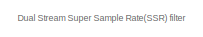
[diagram: root canvas - part 1/6, top left region]
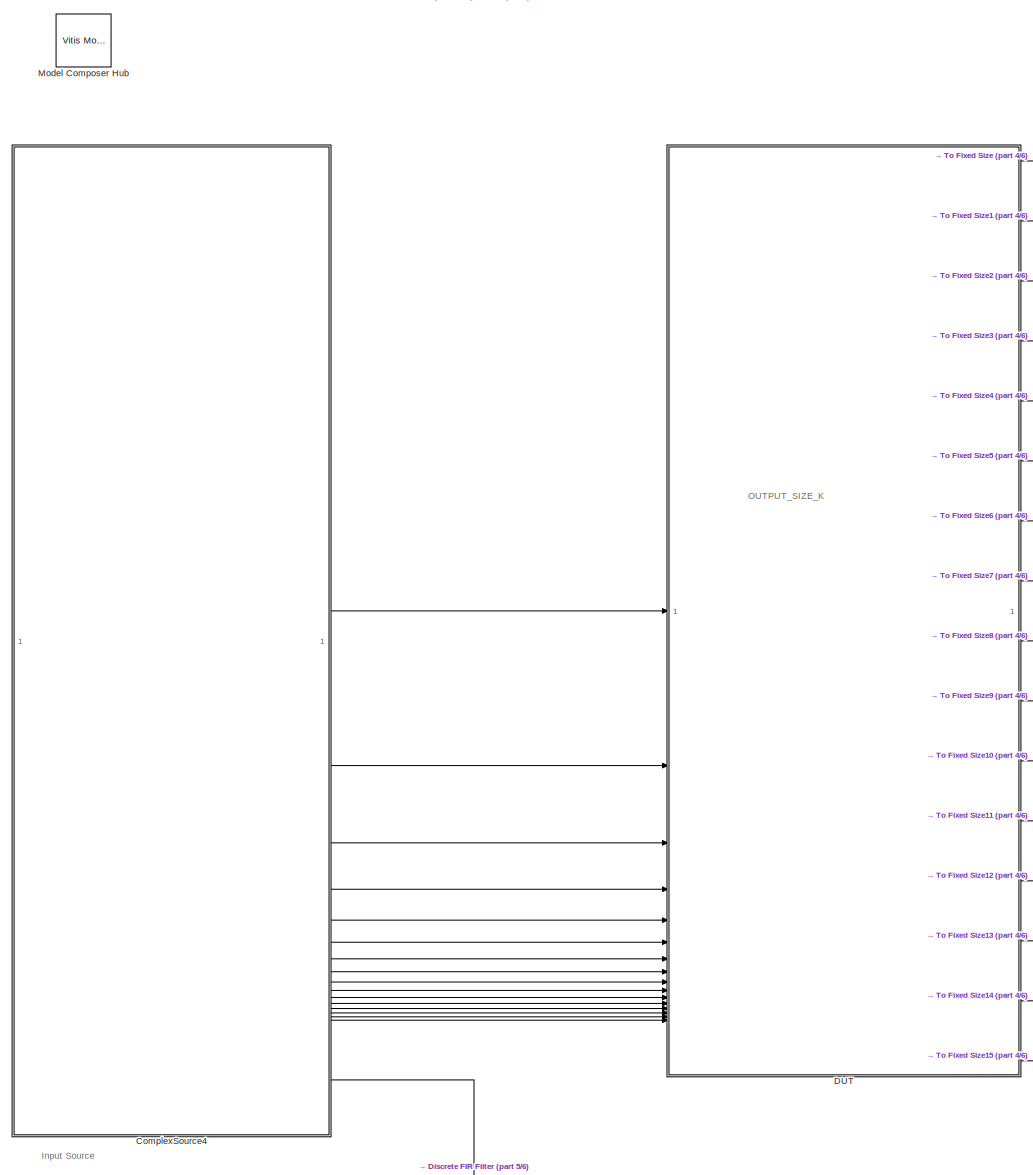
[diagram: root canvas - part 2/6, left side, full height]
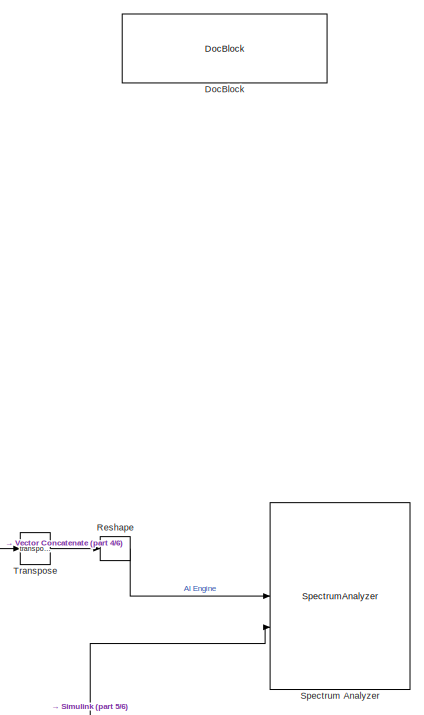
[diagram: root canvas - part 3/6, top right region]
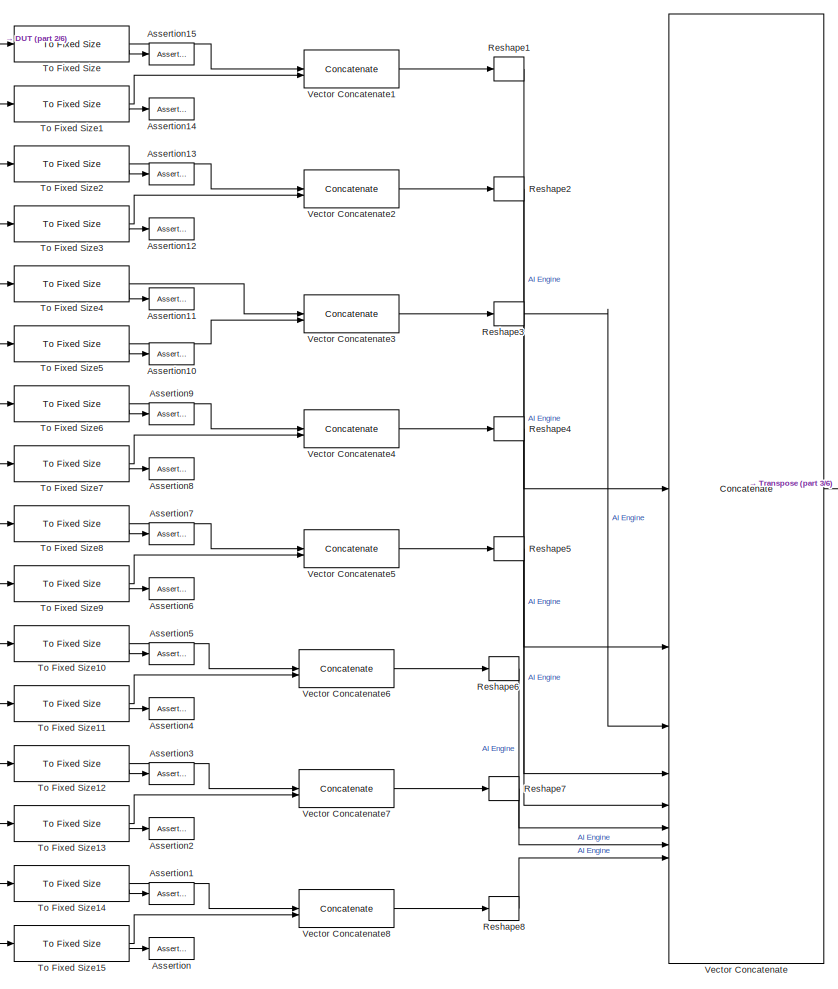
[diagram: root canvas - part 4/6, central region]
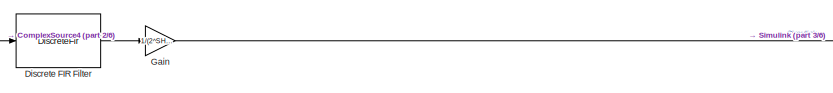
[diagram: root canvas - part 5/6, bottom center region]
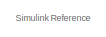
[diagram: root canvas - part 6/6, bottom left region]
MODEL slx_19c2fdb04941
KIND model
CONFIG AbsTol = auto
CONFIG EnableMultiTasking = off
CONFIG FixedStep = auto
CONFIG InitFcn = SSR4_init
CONFIG MaxStep = auto
CONFIG MinStep = auto
CONFIG PreLoadFcn = SSR4_init
CONFIG RelTol = 1e-3
CONFIG SampleTimeConstraint = Unconstrained
CONFIG SolverName = VariableStepAuto
CONFIG StartTime = 0.0
CONFIG StopTime = 4096
BLOCK [Assertion] Assertion
BLOCK [Assertion] Assertion1
BLOCK [Assertion] Assertion10
BLOCK [Assertion] Assertion11
BLOCK [Assertion] Assertion12
BLOCK [Assertion] Assertion13
BLOCK [Assertion] Assertion14
BLOCK [Assertion] Assertion15
BLOCK [Assertion] Assertion2
BLOCK [Assertion] Assertion3
BLOCK [Assertion] Assertion4
BLOCK [Assertion] Assertion5
BLOCK [Assertion] Assertion6
BLOCK [Assertion] Assertion7
BLOCK [Assertion] Assertion8
BLOCK [Assertion] Assertion9
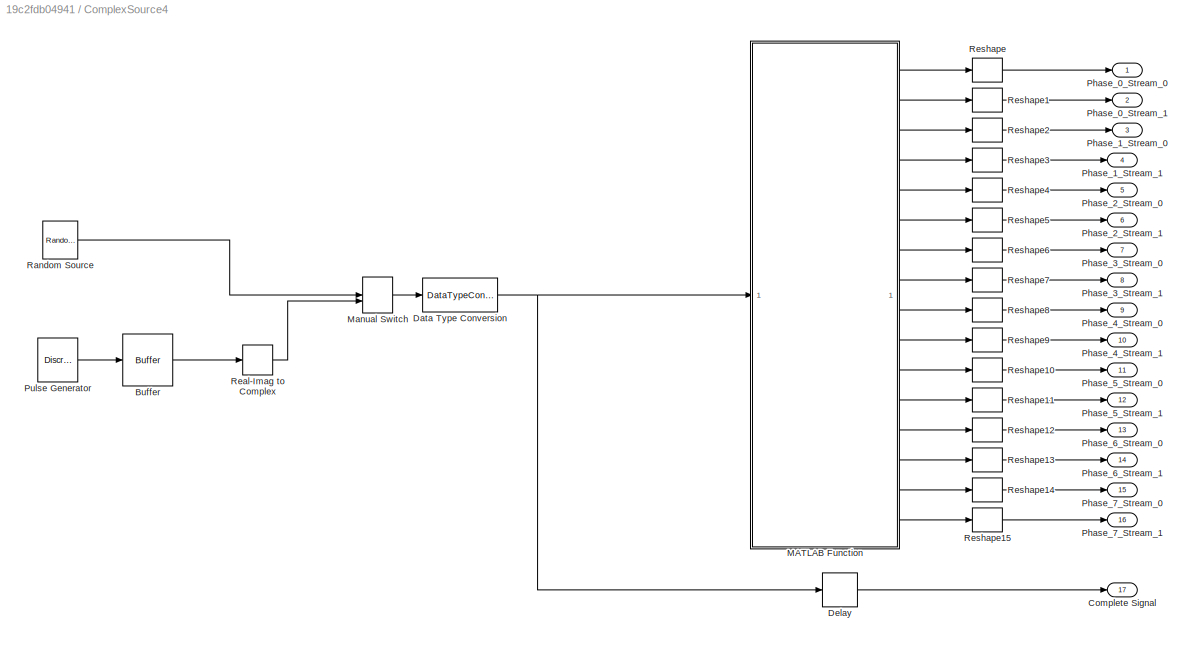
BLOCK [SubSystem] ComplexSource4
BLOCK [Buffer] ComplexSource4/Buffer
  N = N*8
  OutputFrames = off
BLOCK [Outport] ComplexSource4/Complete Signal
  Port = 17
BLOCK [DataTypeConversion] ComplexSource4/Data Type Conversion
  OutDataTypeStr = int16
  RndMeth = Floor
  SaturateOnIntegerOverflow = off
BLOCK [Delay] ComplexSource4/Delay
  DelayLength = 13+N*4
  InputPortMap = u0
  InputProcessing = Columns as channels (frame based)
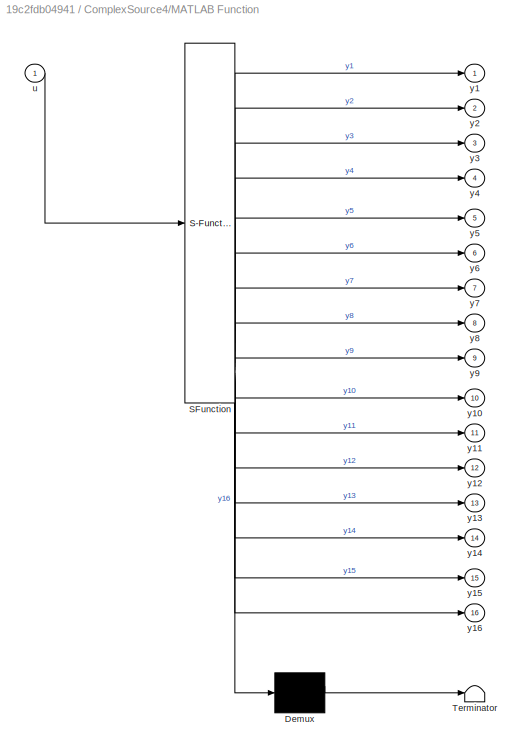
BLOCK [SubSystem] ComplexSource4/MATLAB Function
  ErrorFcn = Stateflow.Translate.translate
  PermitHierarchicalResolution = ExplicitOnly
  SFBlockType = MATLAB Function
  TreatAsAtomicUnit = on
BLOCK [Demux] ComplexSource4/MATLAB Function/ Demux 
  Outputs = 1
BLOCK [S-Function] ComplexSource4/MATLAB Function/ SFunction 
  EnableBusSupport = on
  FunctionName = sf_sfun
  PortCounts = [1 17]
  SFcnIsStateOwnerBlock = off
  SFunctionDeploymentMode = off
  Tag = Stateflow S-Function 2
BLOCK [Terminator] ComplexSource4/MATLAB Function/ Terminator 
BLOCK [Inport] ComplexSource4/MATLAB Function/u
BLOCK [Outport] ComplexSource4/MATLAB Function/y1
BLOCK [Outport] ComplexSource4/MATLAB Function/y10
  Port = 10
BLOCK [Outport] ComplexSource4/MATLAB Function/y11
  Port = 11
BLOCK [Outport] ComplexSource4/MATLAB Function/y12
  Port = 12
BLOCK [Outport] ComplexSource4/MATLAB Function/y13
  Port = 13
BLOCK [Outport] ComplexSource4/MATLAB Function/y14
  Port = 14
BLOCK [Outport] ComplexSource4/MATLAB Function/y15
  Port = 15
BLOCK [Outport] ComplexSource4/MATLAB Function/y16
  Port = 16
BLOCK [Outport] ComplexSource4/MATLAB Function/y2
  Port = 2
BLOCK [Outport] ComplexSource4/MATLAB Function/y3
  Port = 3
BLOCK [Outport] ComplexSource4/MATLAB Function/y4
  Port = 4
BLOCK [Outport] ComplexSource4/MATLAB Function/y5
  Port = 5
BLOCK [Outport] ComplexSource4/MATLAB Function/y6
  Port = 6
BLOCK [Outport] ComplexSource4/MATLAB Function/y7
  Port = 7
BLOCK [Outport] ComplexSource4/MATLAB Function/y8
  Port = 8
BLOCK [Outport] ComplexSource4/MATLAB Function/y9
  Port = 9
BLOCK [ManualSwitch] ComplexSource4/Manual Switch
BLOCK [Outport] ComplexSource4/Phase_0_Stream_0
BLOCK [Outport] ComplexSource4/Phase_0_Stream_1
  Port = 2
BLOCK [Outport] ComplexSource4/Phase_1_Stream_0
  Port = 3
BLOCK [Outport] ComplexSource4/Phase_1_Stream_1
  Port = 4
BLOCK [Outport] ComplexSource4/Phase_2_Stream_0
  Port = 5
BLOCK [Outport] ComplexSource4/Phase_2_Stream_1
  Port = 6
BLOCK [Outport] ComplexSource4/Phase_3_Stream_0
  Port = 7
BLOCK [Outport] ComplexSource4/Phase_3_Stream_1
  Port = 8
BLOCK [Outport] ComplexSource4/Phase_4_Stream_0
  Port = 9
BLOCK [Outport] ComplexSource4/Phase_4_Stream_1
  Port = 10
BLOCK [Outport] ComplexSource4/Phase_5_Stream_0
  Port = 11
BLOCK [Outport] ComplexSource4/Phase_5_Stream_1
  Port = 12
BLOCK [Outport] ComplexSource4/Phase_6_Stream_0
  Port = 13
BLOCK [Outport] ComplexSource4/Phase_6_Stream_1
  Port = 14
BLOCK [Outport] ComplexSource4/Phase_7_Stream_0
  Port = 15
BLOCK [Outport] ComplexSource4/Phase_7_Stream_1
  Port = 16
BLOCK [DiscretePulseGenerator] ComplexSource4/Pulse Generator
  Amplitude = 20000
  Period = 32 + 40*5
  PhaseDelay = 32
  SampleTime = 1/8
BLOCK [Reference] ComplexSource4/Random Source  REF=dspobslib/Random
Source
  SourceBlock = dspobslib/Random\nSource
  SourceType = Random Source Obsolete
  UserDataPersistent = on
BLOCK [RealImagToComplex] ComplexSource4/Real-Imag to Complex
  Input = Real
BLOCK [Reshape] ComplexSource4/Reshape
BLOCK [Reshape] ComplexSource4/Reshape1
BLOCK [Reshape] ComplexSource4/Reshape10
BLOCK [Reshape] ComplexSource4/Reshape11
BLOCK [Reshape] ComplexSource4/Reshape12
BLOCK [Reshape] ComplexSource4/Reshape13
BLOCK [Reshape] ComplexSource4/Reshape14
BLOCK [Reshape] ComplexSource4/Reshape15
BLOCK [Reshape] ComplexSource4/Reshape2
BLOCK [Reshape] ComplexSource4/Reshape3
BLOCK [Reshape] ComplexSource4/Reshape4
BLOCK [Reshape] ComplexSource4/Reshape5
BLOCK [Reshape] ComplexSource4/Reshape6
BLOCK [Reshape] ComplexSource4/Reshape7
BLOCK [Reshape] ComplexSource4/Reshape8
BLOCK [Reshape] ComplexSource4/Reshape9
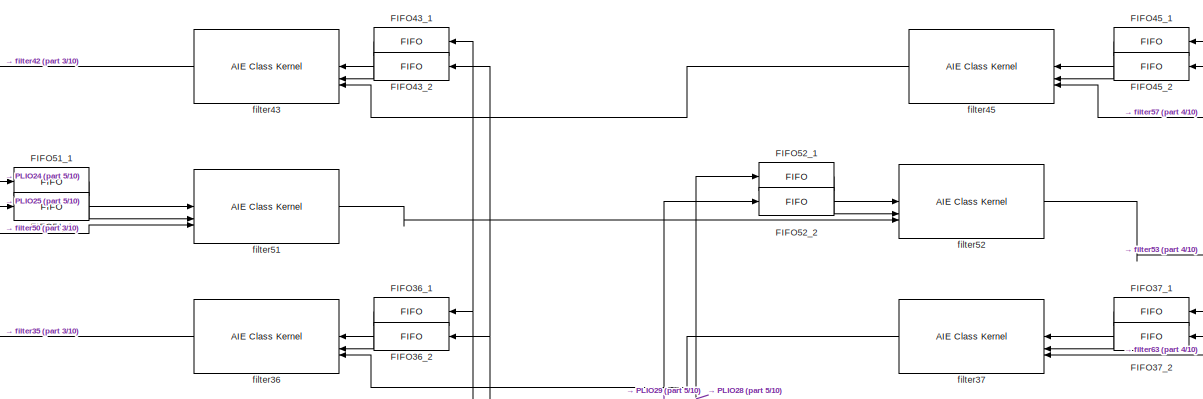
[diagram: DUT - part 1/10, top center region]
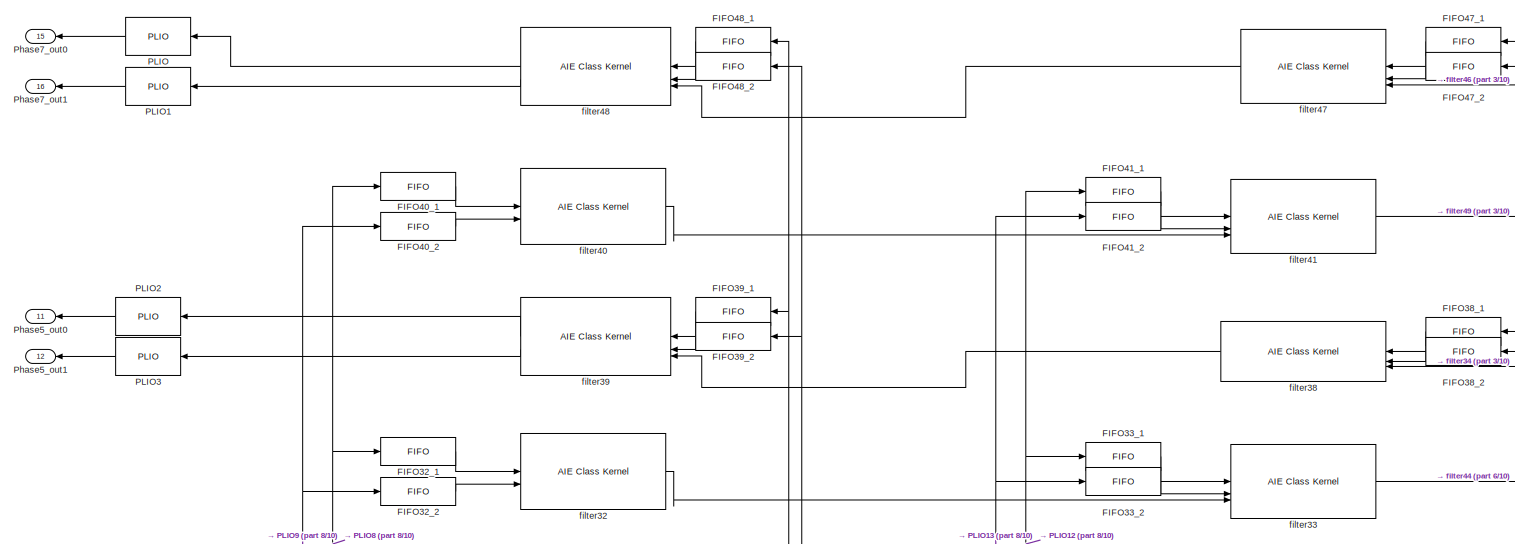
[diagram: DUT - part 2/10, top left region]
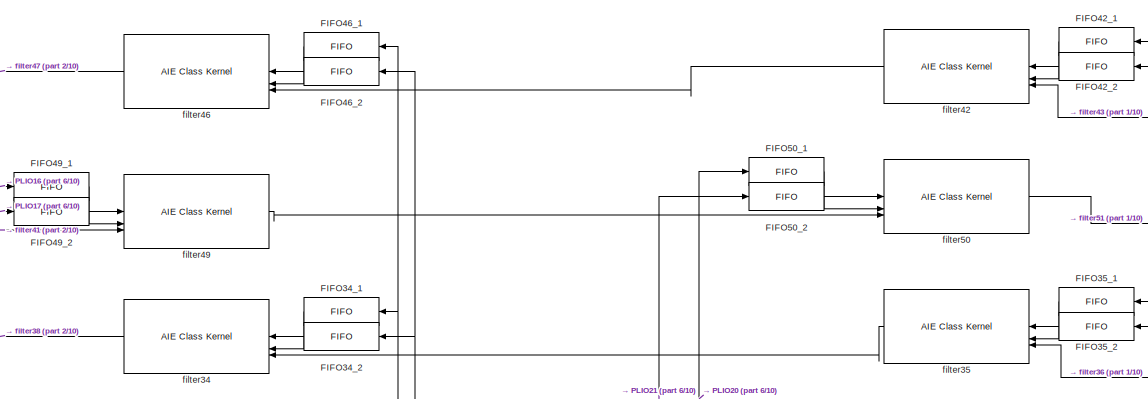
[diagram: DUT - part 3/10, top center region]
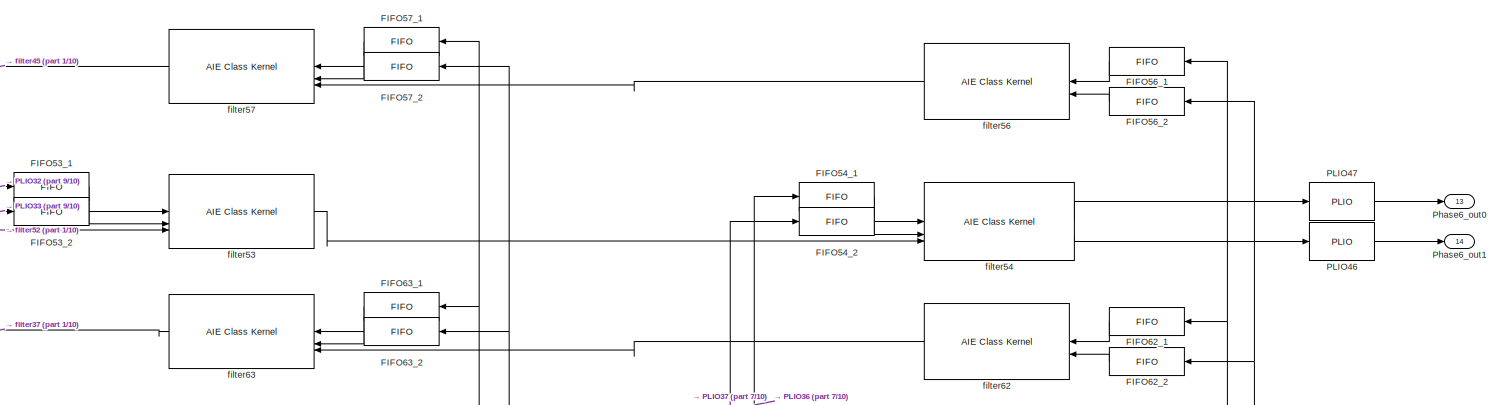
[diagram: DUT - part 4/10, top right region]
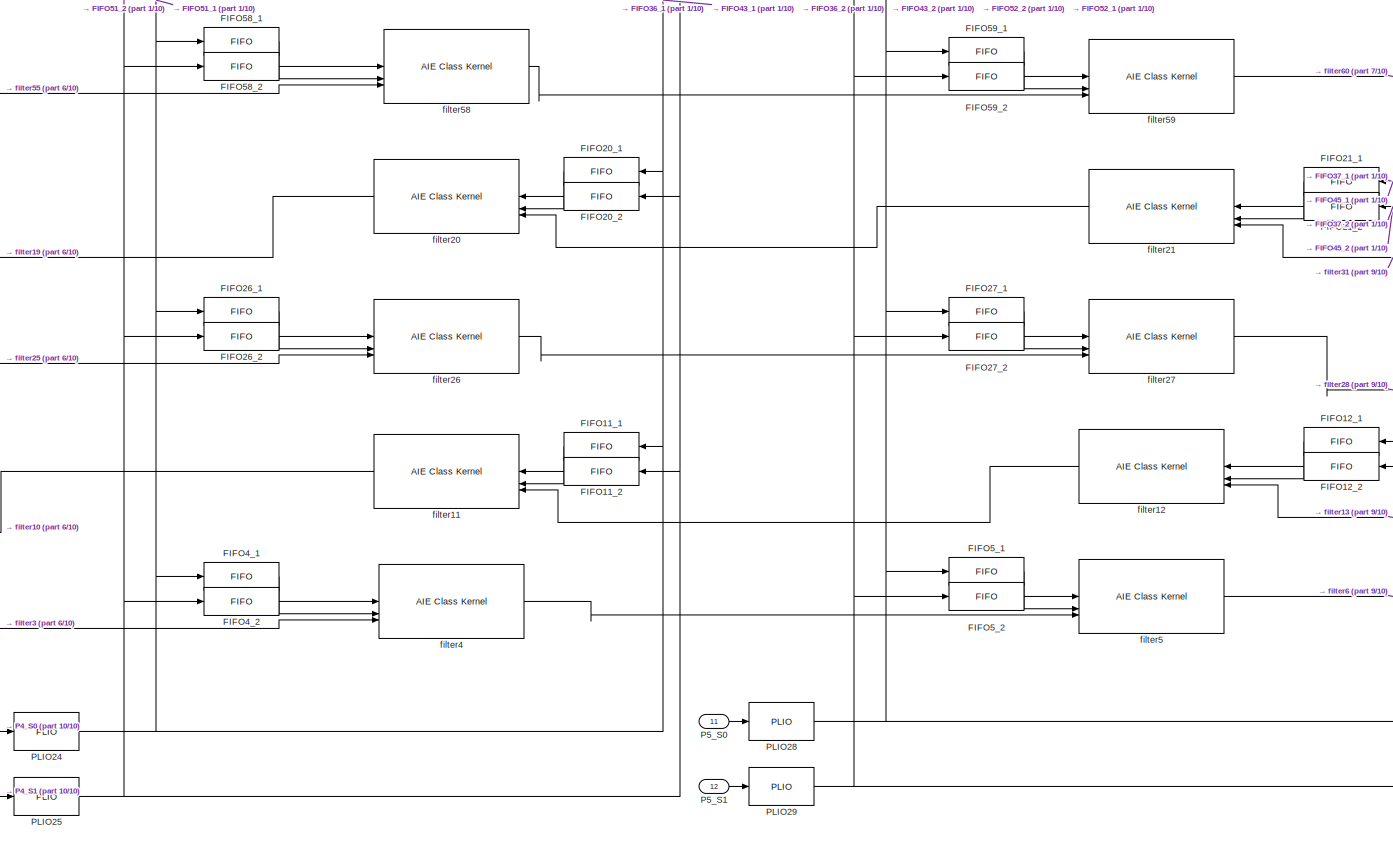
[diagram: DUT - part 5/10, central region]
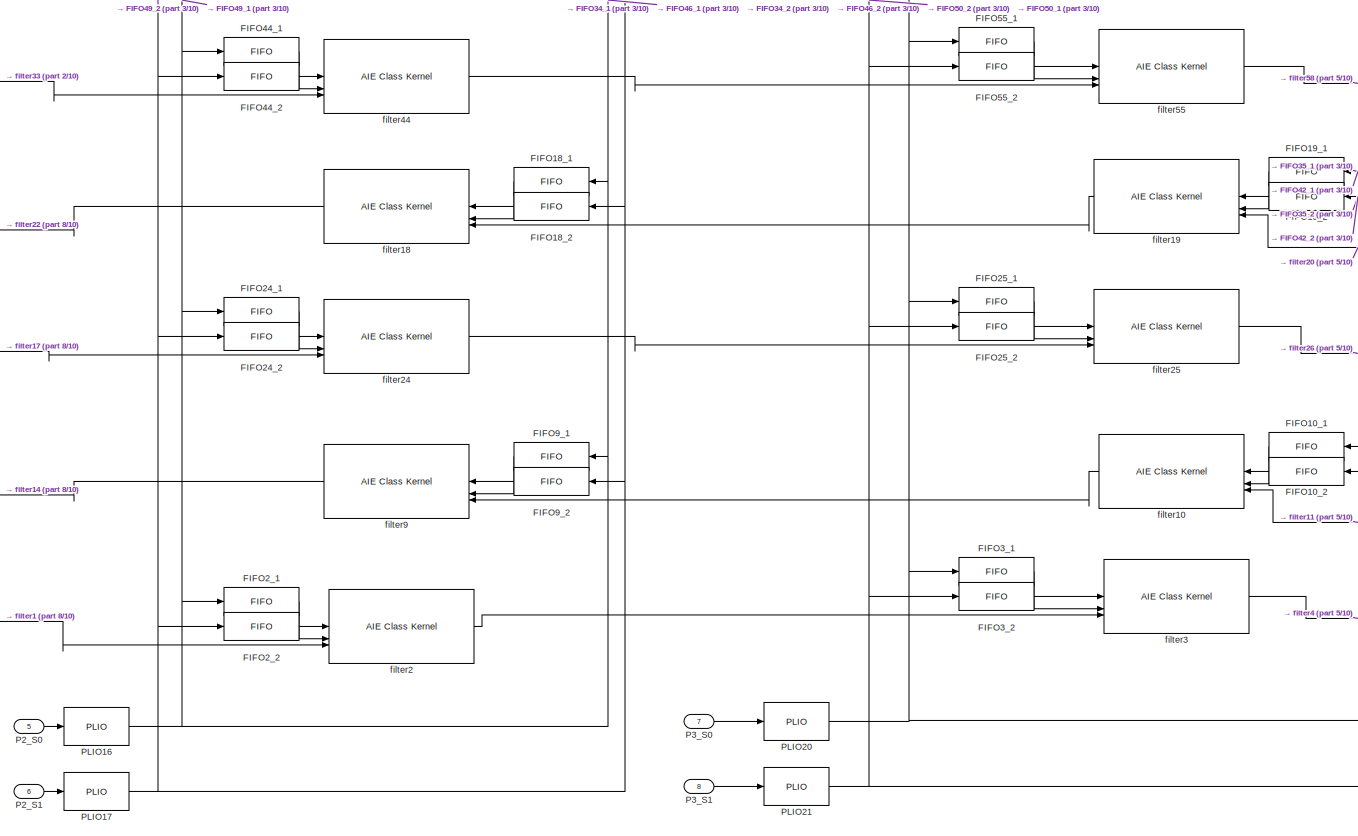
[diagram: DUT - part 6/10, central region]
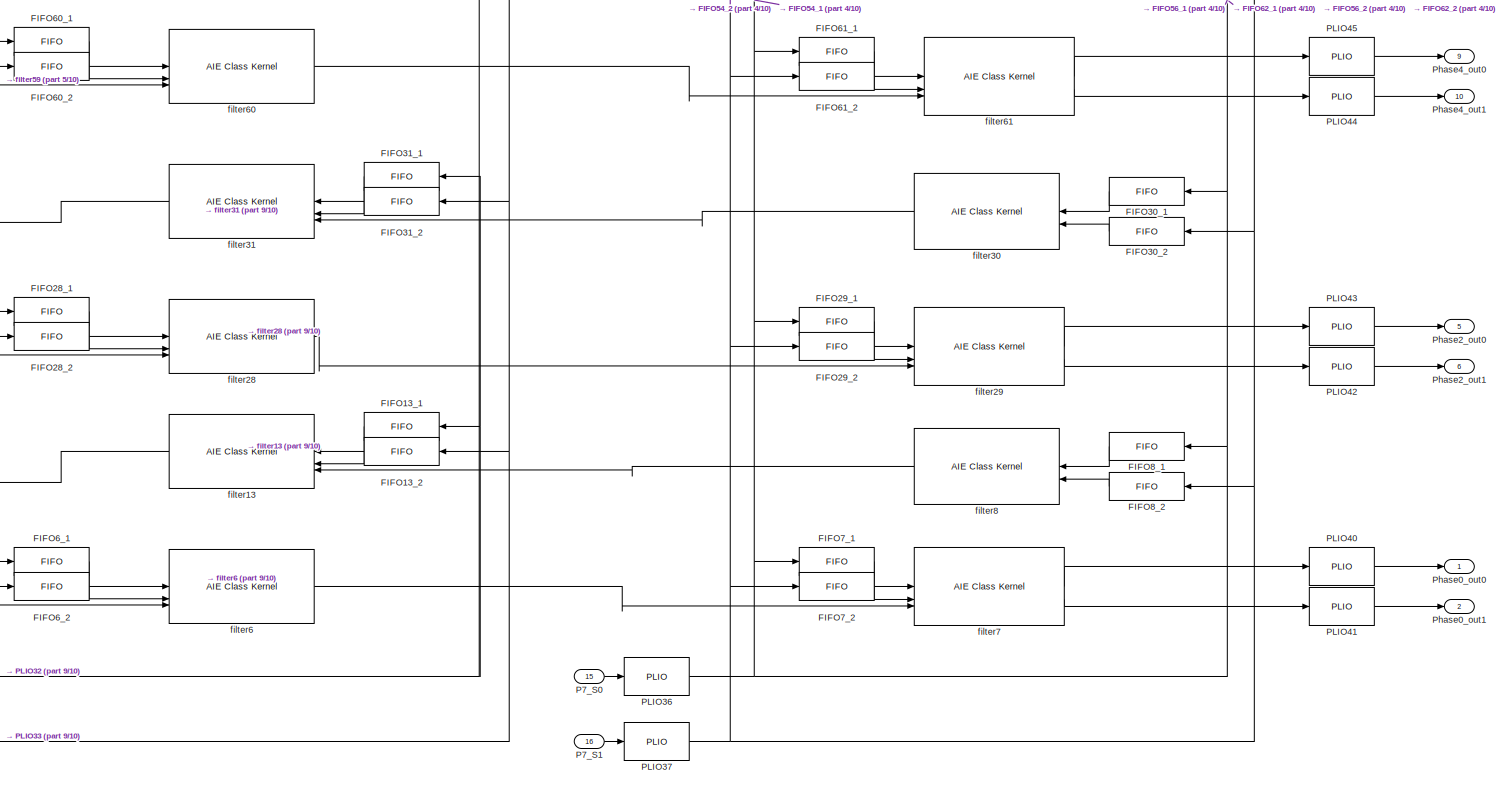
[diagram: DUT - part 7/10, middle right region]
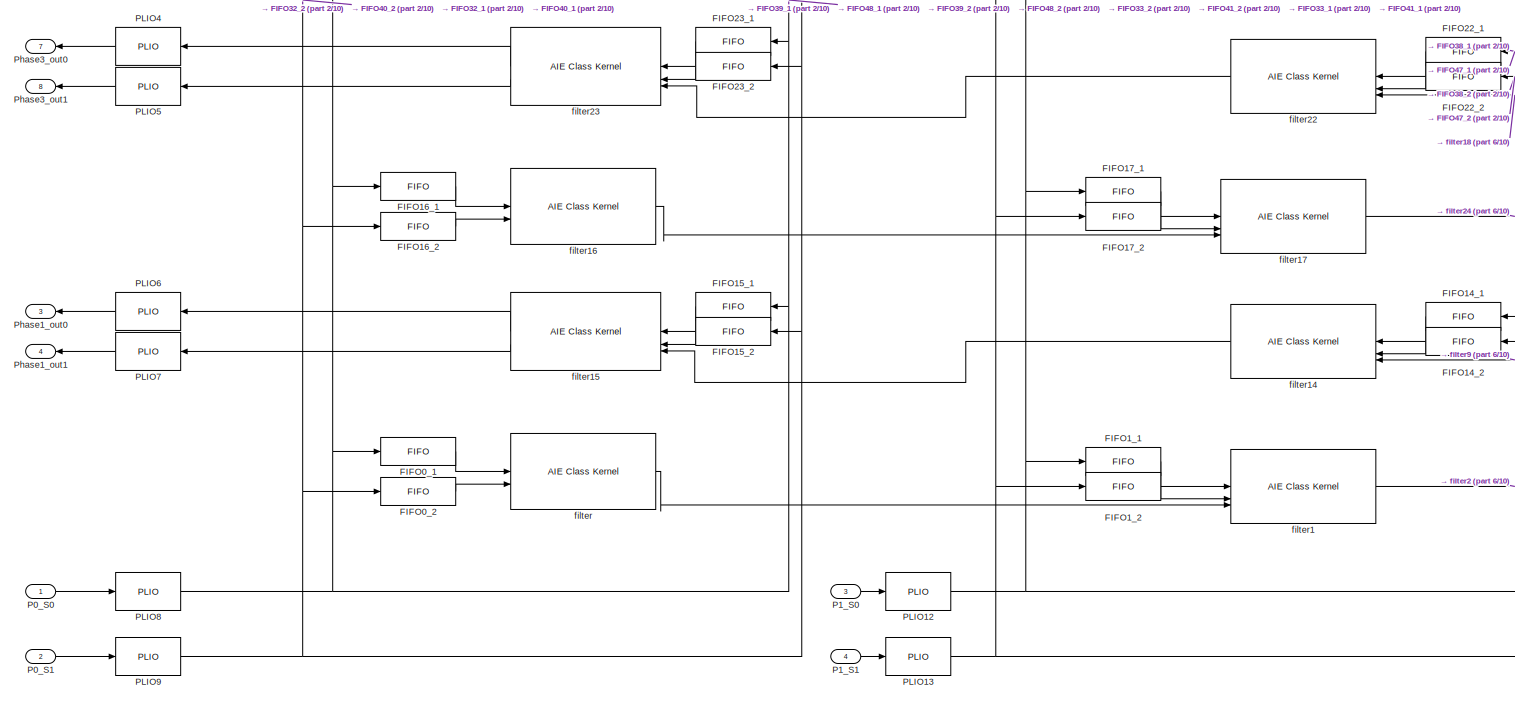
[diagram: DUT - part 8/10, bottom left region]
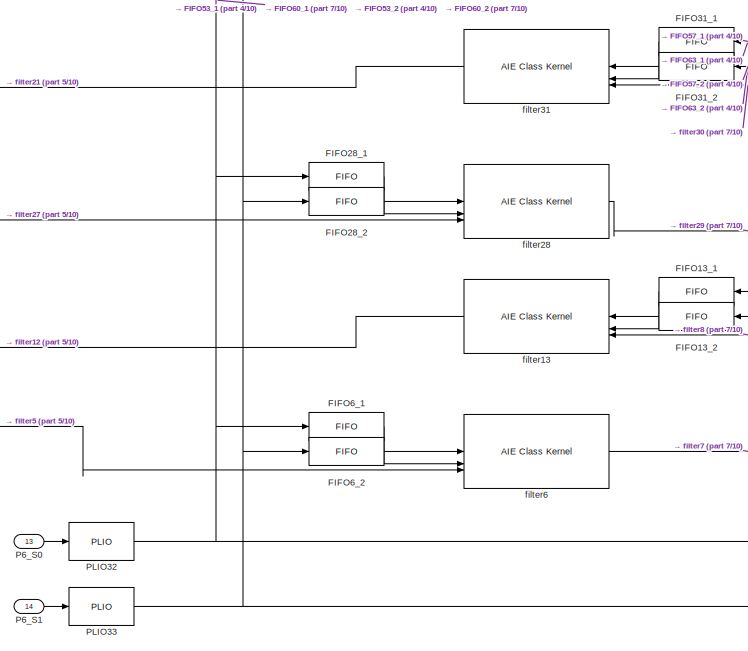
[diagram: DUT - part 9/10, bottom right region]
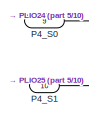
[diagram: DUT - part 10/10, bottom center region]
BLOCK [SubSystem] DUT
BLOCK [Reference] DUT/FIFO0_1  REF=aieBasic/FIFO
  SourceBlock = aieBasic/FIFO
  SourceType = FIFO
BLOCK [Reference] DUT/FIFO0_2  REF=aieBasic/FIFO
  SourceBlock = aieBasic/FIFO
  SourceType = FIFO
BLOCK [Reference] DUT/FIFO10_1  REF=aieBasic/FIFO
  SourceBlock = aieBasic/FIFO
  SourceType = FIFO
BLOCK [Reference] DUT/FIFO10_2  REF=aieBasic/FIFO
  SourceBlock = aieBasic/FIFO
  SourceType = FIFO
BLOCK [Reference] DUT/FIFO11_1  REF=aieBasic/FIFO
  SourceBlock = aieBasic/FIFO
  SourceType = FIFO
BLOCK [Reference] DUT/FIFO11_2  REF=aieBasic/FIFO
  SourceBlock = aieBasic/FIFO
  SourceType = FIFO
BLOCK [Reference] DUT/FIFO12_1  REF=aieBasic/FIFO
  SourceBlock = aieBasic/FIFO
  SourceType = FIFO
BLOCK [Reference] DUT/FIFO12_2  REF=aieBasic/FIFO
  SourceBlock = aieBasic/FIFO
  SourceType = FIFO
BLOCK [Reference] DUT/FIFO13_1  REF=aieBasic/FIFO
  SourceBlock = aieBasic/FIFO
  SourceType = FIFO
BLOCK [Reference] DUT/FIFO13_2  REF=aieBasic/FIFO
  SourceBlock = aieBasic/FIFO
  SourceType = FIFO
BLOCK [Reference] DUT/FIFO14_1  REF=aieBasic/FIFO
  SourceBlock = aieBasic/FIFO
  SourceType = FIFO
BLOCK [Reference] DUT/FIFO14_2  REF=aieBasic/FIFO
  SourceBlock = aieBasic/FIFO
  SourceType = FIFO
BLOCK [Reference] DUT/FIFO15_1  REF=aieBasic/FIFO
  SourceBlock = aieBasic/FIFO
  SourceType = FIFO
BLOCK [Reference] DUT/FIFO15_2  REF=aieBasic/FIFO
  SourceBlock = aieBasic/FIFO
  SourceType = FIFO
BLOCK [Reference] DUT/FIFO16_1  REF=aieBasic/FIFO
  SourceBlock = aieBasic/FIFO
  SourceType = FIFO
BLOCK [Reference] DUT/FIFO16_2  REF=aieBasic/FIFO
  SourceBlock = aieBasic/FIFO
  SourceType = FIFO
BLOCK [Reference] DUT/FIFO17_1  REF=aieBasic/FIFO
  SourceBlock = aieBasic/FIFO
  SourceType = FIFO
BLOCK [Reference] DUT/FIFO17_2  REF=aieBasic/FIFO
  SourceBlock = aieBasic/FIFO
  SourceType = FIFO
BLOCK [Reference] DUT/FIFO18_1  REF=aieBasic/FIFO
  SourceBlock = aieBasic/FIFO
  SourceType = FIFO
BLOCK [Reference] DUT/FIFO18_2  REF=aieBasic/FIFO
  SourceBlock = aieBasic/FIFO
  SourceType = FIFO
BLOCK [Reference] DUT/FIFO19_1  REF=aieBasic/FIFO
  SourceBlock = aieBasic/FIFO
  SourceType = FIFO
BLOCK [Reference] DUT/FIFO19_2  REF=aieBasic/FIFO
  SourceBlock = aieBasic/FIFO
  SourceType = FIFO
BLOCK [Reference] DUT/FIFO1_1  REF=aieBasic/FIFO
  SourceBlock = aieBasic/FIFO
  SourceType = FIFO
BLOCK [Reference] DUT/FIFO1_2  REF=aieBasic/FIFO
  SourceBlock = aieBasic/FIFO
  SourceType = FIFO
BLOCK [Reference] DUT/FIFO20_1  REF=aieBasic/FIFO
  SourceBlock = aieBasic/FIFO
  SourceType = FIFO
BLOCK [Reference] DUT/FIFO20_2  REF=aieBasic/FIFO
  SourceBlock = aieBasic/FIFO
  SourceType = FIFO
BLOCK [Reference] DUT/FIFO21_1  REF=aieBasic/FIFO
  SourceBlock = aieBasic/FIFO
  SourceType = FIFO
BLOCK [Reference] DUT/FIFO21_2  REF=aieBasic/FIFO
  SourceBlock = aieBasic/FIFO
  SourceType = FIFO
BLOCK [Reference] DUT/FIFO22_1  REF=aieBasic/FIFO
  SourceBlock = aieBasic/FIFO
  SourceType = FIFO
BLOCK [Reference] DUT/FIFO22_2  REF=aieBasic/FIFO
  SourceBlock = aieBasic/FIFO
  SourceType = FIFO
BLOCK [Reference] DUT/FIFO23_1  REF=aieBasic/FIFO
  SourceBlock = aieBasic/FIFO
  SourceType = FIFO
BLOCK [Reference] DUT/FIFO23_2  REF=aieBasic/FIFO
  SourceBlock = aieBasic/FIFO
  SourceType = FIFO
BLOCK [Reference] DUT/FIFO24_1  REF=aieBasic/FIFO
  SourceBlock = aieBasic/FIFO
  SourceType = FIFO
BLOCK [Reference] DUT/FIFO24_2  REF=aieBasic/FIFO
  SourceBlock = aieBasic/FIFO
  SourceType = FIFO
BLOCK [Reference] DUT/FIFO25_1  REF=aieBasic/FIFO
  SourceBlock = aieBasic/FIFO
  SourceType = FIFO
BLOCK [Reference] DUT/FIFO25_2  REF=aieBasic/FIFO
  SourceBlock = aieBasic/FIFO
  SourceType = FIFO
BLOCK [Reference] DUT/FIFO26_1  REF=aieBasic/FIFO
  SourceBlock = aieBasic/FIFO
  SourceType = FIFO
BLOCK [Reference] DUT/FIFO26_2  REF=aieBasic/FIFO
  SourceBlock = aieBasic/FIFO
  SourceType = FIFO
BLOCK [Reference] DUT/FIFO27_1  REF=aieBasic/FIFO
  SourceBlock = aieBasic/FIFO
  SourceType = FIFO
BLOCK [Reference] DUT/FIFO27_2  REF=aieBasic/FIFO
  SourceBlock = aieBasic/FIFO
  SourceType = FIFO
BLOCK [Reference] DUT/FIFO28_1  REF=aieBasic/FIFO
  SourceBlock = aieBasic/FIFO
  SourceType = FIFO
BLOCK [Reference] DUT/FIFO28_2  REF=aieBasic/FIFO
  SourceBlock = aieBasic/FIFO
  SourceType = FIFO
BLOCK [Reference] DUT/FIFO29_1  REF=aieBasic/FIFO
  SourceBlock = aieBasic/FIFO
  SourceType = FIFO
BLOCK [Reference] DUT/FIFO29_2  REF=aieBasic/FIFO
  SourceBlock = aieBasic/FIFO
  SourceType = FIFO
BLOCK [Reference] DUT/FIFO2_1  REF=aieBasic/FIFO
  SourceBlock = aieBasic/FIFO
  SourceType = FIFO
BLOCK [Reference] DUT/FIFO2_2  REF=aieBasic/FIFO
  SourceBlock = aieBasic/FIFO
  SourceType = FIFO
BLOCK [Reference] DUT/FIFO30_1  REF=aieBasic/FIFO
  SourceBlock = aieBasic/FIFO
  SourceType = FIFO
BLOCK [Reference] DUT/FIFO30_2  REF=aieBasic/FIFO
  SourceBlock = aieBasic/FIFO
  SourceType = FIFO
BLOCK [Reference] DUT/FIFO31_1  REF=aieBasic/FIFO
  SourceBlock = aieBasic/FIFO
  SourceType = FIFO
BLOCK [Reference] DUT/FIFO31_2  REF=aieBasic/FIFO
  SourceBlock = aieBasic/FIFO
  SourceType = FIFO
BLOCK [Reference] DUT/FIFO32_1  REF=aieBasic/FIFO
  SourceBlock = aieBasic/FIFO
  SourceType = FIFO
BLOCK [Reference] DUT/FIFO32_2  REF=aieBasic/FIFO
  SourceBlock = aieBasic/FIFO
  SourceType = FIFO
BLOCK [Reference] DUT/FIFO33_1  REF=aieBasic/FIFO
  SourceBlock = aieBasic/FIFO
  SourceType = FIFO
BLOCK [Reference] DUT/FIFO33_2  REF=aieBasic/FIFO
  SourceBlock = aieBasic/FIFO
  SourceType = FIFO
BLOCK [Reference] DUT/FIFO34_1  REF=aieBasic/FIFO
  SourceBlock = aieBasic/FIFO
  SourceType = FIFO
BLOCK [Reference] DUT/FIFO34_2  REF=aieBasic/FIFO
  SourceBlock = aieBasic/FIFO
  SourceType = FIFO
BLOCK [Reference] DUT/FIFO35_1  REF=aieBasic/FIFO
  SourceBlock = aieBasic/FIFO
  SourceType = FIFO
BLOCK [Reference] DUT/FIFO35_2  REF=aieBasic/FIFO
  SourceBlock = aieBasic/FIFO
  SourceType = FIFO
BLOCK [Reference] DUT/FIFO36_1  REF=aieBasic/FIFO
  SourceBlock = aieBasic/FIFO
  SourceType = FIFO
BLOCK [Reference] DUT/FIFO36_2  REF=aieBasic/FIFO
  SourceBlock = aieBasic/FIFO
  SourceType = FIFO
BLOCK [Reference] DUT/FIFO37_1  REF=aieBasic/FIFO
  SourceBlock = aieBasic/FIFO
  SourceType = FIFO
BLOCK [Reference] DUT/FIFO37_2  REF=aieBasic/FIFO
  SourceBlock = aieBasic/FIFO
  SourceType = FIFO
BLOCK [Reference] DUT/FIFO38_1  REF=aieBasic/FIFO
  SourceBlock = aieBasic/FIFO
  SourceType = FIFO
BLOCK [Reference] DUT/FIFO38_2  REF=aieBasic/FIFO
  SourceBlock = aieBasic/FIFO
  SourceType = FIFO
BLOCK [Reference] DUT/FIFO39_1  REF=aieBasic/FIFO
  SourceBlock = aieBasic/FIFO
  SourceType = FIFO
BLOCK [Reference] DUT/FIFO39_2  REF=aieBasic/FIFO
  SourceBlock = aieBasic/FIFO
  SourceType = FIFO
BLOCK [Reference] DUT/FIFO3_1  REF=aieBasic/FIFO
  SourceBlock = aieBasic/FIFO
  SourceType = FIFO
BLOCK [Reference] DUT/FIFO3_2  REF=aieBasic/FIFO
  SourceBlock = aieBasic/FIFO
  SourceType = FIFO
BLOCK [Reference] DUT/FIFO40_1  REF=aieBasic/FIFO
  SourceBlock = aieBasic/FIFO
  SourceType = FIFO
BLOCK [Reference] DUT/FIFO40_2  REF=aieBasic/FIFO
  SourceBlock = aieBasic/FIFO
  SourceType = FIFO
BLOCK [Reference] DUT/FIFO41_1  REF=aieBasic/FIFO
  SourceBlock = aieBasic/FIFO
  SourceType = FIFO
BLOCK [Reference] DUT/FIFO41_2  REF=aieBasic/FIFO
  SourceBlock = aieBasic/FIFO
  SourceType = FIFO
BLOCK [Reference] DUT/FIFO42_1  REF=aieBasic/FIFO
  SourceBlock = aieBasic/FIFO
  SourceType = FIFO
BLOCK [Reference] DUT/FIFO42_2  REF=aieBasic/FIFO
  SourceBlock = aieBasic/FIFO
  SourceType = FIFO
BLOCK [Reference] DUT/FIFO43_1  REF=aieBasic/FIFO
  SourceBlock = aieBasic/FIFO
  SourceType = FIFO
BLOCK [Reference] DUT/FIFO43_2  REF=aieBasic/FIFO
  SourceBlock = aieBasic/FIFO
  SourceType = FIFO
BLOCK [Reference] DUT/FIFO44_1  REF=aieBasic/FIFO
  SourceBlock = aieBasic/FIFO
  SourceType = FIFO
BLOCK [Reference] DUT/FIFO44_2  REF=aieBasic/FIFO
  SourceBlock = aieBasic/FIFO
  SourceType = FIFO
BLOCK [Reference] DUT/FIFO45_1  REF=aieBasic/FIFO
  SourceBlock = aieBasic/FIFO
  SourceType = FIFO
BLOCK [Reference] DUT/FIFO45_2  REF=aieBasic/FIFO
  SourceBlock = aieBasic/FIFO
  SourceType = FIFO
BLOCK [Reference] DUT/FIFO46_1  REF=aieBasic/FIFO
  SourceBlock = aieBasic/FIFO
  SourceType = FIFO
BLOCK [Reference] DUT/FIFO46_2  REF=aieBasic/FIFO
  SourceBlock = aieBasic/FIFO
  SourceType = FIFO
BLOCK [Reference] DUT/FIFO47_1  REF=aieBasic/FIFO
  SourceBlock = aieBasic/FIFO
  SourceType = FIFO
BLOCK [Reference] DUT/FIFO47_2  REF=aieBasic/FIFO
  SourceBlock = aieBasic/FIFO
  SourceType = FIFO
BLOCK [Reference] DUT/FIFO48_1  REF=aieBasic/FIFO
  SourceBlock = aieBasic/FIFO
  SourceType = FIFO
BLOCK [Reference] DUT/FIFO48_2  REF=aieBasic/FIFO
  SourceBlock = aieBasic/FIFO
  SourceType = FIFO
BLOCK [Reference] DUT/FIFO49_1  REF=aieBasic/FIFO
  SourceBlock = aieBasic/FIFO
  SourceType = FIFO
BLOCK [Reference] DUT/FIFO49_2  REF=aieBasic/FIFO
  SourceBlock = aieBasic/FIFO
  SourceType = FIFO
BLOCK [Reference] DUT/FIFO4_1  REF=aieBasic/FIFO
  SourceBlock = aieBasic/FIFO
  SourceType = FIFO
BLOCK [Reference] DUT/FIFO4_2  REF=aieBasic/FIFO
  SourceBlock = aieBasic/FIFO
  SourceType = FIFO
BLOCK [Reference] DUT/FIFO50_1  REF=aieBasic/FIFO
  SourceBlock = aieBasic/FIFO
  SourceType = FIFO
BLOCK [Reference] DUT/FIFO50_2  REF=aieBasic/FIFO
  SourceBlock = aieBasic/FIFO
  SourceType = FIFO
BLOCK [Reference] DUT/FIFO51_1  REF=aieBasic/FIFO
  SourceBlock = aieBasic/FIFO
  SourceType = FIFO
BLOCK [Reference] DUT/FIFO51_2  REF=aieBasic/FIFO
  SourceBlock = aieBasic/FIFO
  SourceType = FIFO
BLOCK [Reference] DUT/FIFO52_1  REF=aieBasic/FIFO
  SourceBlock = aieBasic/FIFO
  SourceType = FIFO
BLOCK [Reference] DUT/FIFO52_2  REF=aieBasic/FIFO
  SourceBlock = aieBasic/FIFO
  SourceType = FIFO
BLOCK [Reference] DUT/FIFO53_1  REF=aieBasic/FIFO
  SourceBlock = aieBasic/FIFO
  SourceType = FIFO
BLOCK [Reference] DUT/FIFO53_2  REF=aieBasic/FIFO
  SourceBlock = aieBasic/FIFO
  SourceType = FIFO
BLOCK [Reference] DUT/FIFO54_1  REF=aieBasic/FIFO
  SourceBlock = aieBasic/FIFO
  SourceType = FIFO
BLOCK [Reference] DUT/FIFO54_2  REF=aieBasic/FIFO
  SourceBlock = aieBasic/FIFO
  SourceType = FIFO
BLOCK [Reference] DUT/FIFO55_1  REF=aieBasic/FIFO
  SourceBlock = aieBasic/FIFO
  SourceType = FIFO
BLOCK [Reference] DUT/FIFO55_2  REF=aieBasic/FIFO
  SourceBlock = aieBasic/FIFO
  SourceType = FIFO
BLOCK [Reference] DUT/FIFO56_1  REF=aieBasic/FIFO
  SourceBlock = aieBasic/FIFO
  SourceType = FIFO
BLOCK [Reference] DUT/FIFO56_2  REF=aieBasic/FIFO
  SourceBlock = aieBasic/FIFO
  SourceType = FIFO
BLOCK [Reference] DUT/FIFO57_1  REF=aieBasic/FIFO
  SourceBlock = aieBasic/FIFO
  SourceType = FIFO
BLOCK [Reference] DUT/FIFO57_2  REF=aieBasic/FIFO
  SourceBlock = aieBasic/FIFO
  SourceType = FIFO
BLOCK [Reference] DUT/FIFO58_1  REF=aieBasic/FIFO
  SourceBlock = aieBasic/FIFO
  SourceType = FIFO
BLOCK [Reference] DUT/FIFO58_2  REF=aieBasic/FIFO
  SourceBlock = aieBasic/FIFO
  SourceType = FIFO
BLOCK [Reference] DUT/FIFO59_1  REF=aieBasic/FIFO
  SourceBlock = aieBasic/FIFO
  SourceType = FIFO
BLOCK [Reference] DUT/FIFO59_2  REF=aieBasic/FIFO
  SourceBlock = aieBasic/FIFO
  SourceType = FIFO
BLOCK [Reference] DUT/FIFO5_1  REF=aieBasic/FIFO
  SourceBlock = aieBasic/FIFO
  SourceType = FIFO
BLOCK [Reference] DUT/FIFO5_2  REF=aieBasic/FIFO
  SourceBlock = aieBasic/FIFO
  SourceType = FIFO
BLOCK [Reference] DUT/FIFO60_1  REF=aieBasic/FIFO
  SourceBlock = aieBasic/FIFO
  SourceType = FIFO
BLOCK [Reference] DUT/FIFO60_2  REF=aieBasic/FIFO
  SourceBlock = aieBasic/FIFO
  SourceType = FIFO
BLOCK [Reference] DUT/FIFO61_1  REF=aieBasic/FIFO
  SourceBlock = aieBasic/FIFO
  SourceType = FIFO
BLOCK [Reference] DUT/FIFO61_2  REF=aieBasic/FIFO
  SourceBlock = aieBasic/FIFO
  SourceType = FIFO
BLOCK [Reference] DUT/FIFO62_1  REF=aieBasic/FIFO
  SourceBlock = aieBasic/FIFO
  SourceType = FIFO
BLOCK [Reference] DUT/FIFO62_2  REF=aieBasic/FIFO
  SourceBlock = aieBasic/FIFO
  SourceType = FIFO
BLOCK [Reference] DUT/FIFO63_1  REF=aieBasic/FIFO
  SourceBlock = aieBasic/FIFO
  SourceType = FIFO
BLOCK [Reference] DUT/FIFO63_2  REF=aieBasic/FIFO
  SourceBlock = aieBasic/FIFO
  SourceType = FIFO
BLOCK [Reference] DUT/FIFO6_1  REF=aieBasic/FIFO
  SourceBlock = aieBasic/FIFO
  SourceType = FIFO
BLOCK [Reference] DUT/FIFO6_2  REF=aieBasic/FIFO
  SourceBlock = aieBasic/FIFO
  SourceType = FIFO
BLOCK [Reference] DUT/FIFO7_1  REF=aieBasic/FIFO
  SourceBlock = aieBasic/FIFO
  SourceType = FIFO
BLOCK [Reference] DUT/FIFO7_2  REF=aieBasic/FIFO
  SourceBlock = aieBasic/FIFO
  SourceType = FIFO
BLOCK [Reference] DUT/FIFO8_1  REF=aieBasic/FIFO
  SourceBlock = aieBasic/FIFO
  SourceType = FIFO
BLOCK [Reference] DUT/FIFO8_2  REF=aieBasic/FIFO
  SourceBlock = aieBasic/FIFO
  SourceType = FIFO
BLOCK [Reference] DUT/FIFO9_1  REF=aieBasic/FIFO
  SourceBlock = aieBasic/FIFO
  SourceType = FIFO
BLOCK [Reference] DUT/FIFO9_2  REF=aieBasic/FIFO
  SourceBlock = aieBasic/FIFO
  SourceType = FIFO
BLOCK [Inport] DUT/P0_S0
BLOCK [Inport] DUT/P0_S1
  Port = 2
BLOCK [Inport] DUT/P1_S0
  Port = 3
BLOCK [Inport] DUT/P1_S1
  Port = 4
BLOCK [Inport] DUT/P2_S0
  Port = 5
BLOCK [Inport] DUT/P2_S1
  Port = 6
BLOCK [Inport] DUT/P3_S0
  Port = 7
BLOCK [Inport] DUT/P3_S1
  Port = 8
BLOCK [Inport] DUT/P4_S0
  Port = 9
BLOCK [Inport] DUT/P4_S1
  Port = 10
BLOCK [Inport] DUT/P5_S0
  Port = 11
BLOCK [Inport] DUT/P5_S1
  Port = 12
BLOCK [Inport] DUT/P6_S0
  Port = 13
BLOCK [Inport] DUT/P6_S1
  Port = 14
BLOCK [Inport] DUT/P7_S0
  Port = 15
BLOCK [Inport] DUT/P7_S1
  Port = 16
BLOCK [Reference] DUT/PLIO  REF=aieBasic/PLIO
  NameLocation = top
  SourceBlock = aieBasic/PLIO
  SourceType = PLIO
BLOCK [Reference] DUT/PLIO1  REF=aieBasic/PLIO
  NameLocation = top
  SourceBlock = aieBasic/PLIO
  SourceType = PLIO
BLOCK [Reference] DUT/PLIO12  REF=aieBasic/PLIO
  SourceBlock = aieBasic/PLIO
  SourceType = PLIO
BLOCK [Reference] DUT/PLIO13  REF=aieBasic/PLIO
  SourceBlock = aieBasic/PLIO
  SourceType = PLIO
BLOCK [Reference] DUT/PLIO16  REF=aieBasic/PLIO
  SourceBlock = aieBasic/PLIO
  SourceType = PLIO
BLOCK [Reference] DUT/PLIO17  REF=aieBasic/PLIO
  SourceBlock = aieBasic/PLIO
  SourceType = PLIO
BLOCK [Reference] DUT/PLIO2  REF=aieBasic/PLIO
  NameLocation = top
  SourceBlock = aieBasic/PLIO
  SourceType = PLIO
BLOCK [Reference] DUT/PLIO20  REF=aieBasic/PLIO
  SourceBlock = aieBasic/PLIO
  SourceType = PLIO
BLOCK [Reference] DUT/PLIO21  REF=aieBasic/PLIO
  SourceBlock = aieBasic/PLIO
  SourceType = PLIO
BLOCK [Reference] DUT/PLIO24  REF=aieBasic/PLIO
  SourceBlock = aieBasic/PLIO
  SourceType = PLIO
BLOCK [Reference] DUT/PLIO25  REF=aieBasic/PLIO
  SourceBlock = aieBasic/PLIO
  SourceType = PLIO
BLOCK [Reference] DUT/PLIO28  REF=aieBasic/PLIO
  SourceBlock = aieBasic/PLIO
  SourceType = PLIO
BLOCK [Reference] DUT/PLIO29  REF=aieBasic/PLIO
  SourceBlock = aieBasic/PLIO
  SourceType = PLIO
BLOCK [Reference] DUT/PLIO3  REF=aieBasic/PLIO
  NameLocation = top
  SourceBlock = aieBasic/PLIO
  SourceType = PLIO
BLOCK [Reference] DUT/PLIO32  REF=aieBasic/PLIO
  SourceBlock = aieBasic/PLIO
  SourceType = PLIO
BLOCK [Reference] DUT/PLIO33  REF=aieBasic/PLIO
  SourceBlock = aieBasic/PLIO
  SourceType = PLIO
BLOCK [Reference] DUT/PLIO36  REF=aieBasic/PLIO
  SourceBlock = aieBasic/PLIO
  SourceType = PLIO
BLOCK [Reference] DUT/PLIO37  REF=aieBasic/PLIO
  SourceBlock = aieBasic/PLIO
  SourceType = PLIO
BLOCK [Reference] DUT/PLIO4  REF=aieBasic/PLIO
  NameLocation = top
  SourceBlock = aieBasic/PLIO
  SourceType = PLIO
BLOCK [Reference] DUT/PLIO40  REF=aieBasic/PLIO
  SourceBlock = aieBasic/PLIO
  SourceType = PLIO
BLOCK [Reference] DUT/PLIO41  REF=aieBasic/PLIO
  SourceBlock = aieBasic/PLIO
  SourceType = PLIO
BLOCK [Reference] DUT/PLIO42  REF=aieBasic/PLIO
  SourceBlock = aieBasic/PLIO
  SourceType = PLIO
BLOCK [Reference] DUT/PLIO43  REF=aieBasic/PLIO
  SourceBlock = aieBasic/PLIO
  SourceType = PLIO
BLOCK [Reference] DUT/PLIO44  REF=aieBasic/PLIO
  SourceBlock = aieBasic/PLIO
  SourceType = PLIO
BLOCK [Reference] DUT/PLIO45  REF=aieBasic/PLIO
  SourceBlock = aieBasic/PLIO
  SourceType = PLIO
BLOCK [Reference] DUT/PLIO46  REF=aieBasic/PLIO
  SourceBlock = aieBasic/PLIO
  SourceType = PLIO
BLOCK [Reference] DUT/PLIO47  REF=aieBasic/PLIO
  SourceBlock = aieBasic/PLIO
  SourceType = PLIO
BLOCK [Reference] DUT/PLIO5  REF=aieBasic/PLIO
  NameLocation = top
  SourceBlock = aieBasic/PLIO
  SourceType = PLIO
BLOCK [Reference] DUT/PLIO6  REF=aieBasic/PLIO
  NameLocation = top
  SourceBlock = aieBasic/PLIO
  SourceType = PLIO
BLOCK [Reference] DUT/PLIO7  REF=aieBasic/PLIO
  NameLocation = top
  SourceBlock = aieBasic/PLIO
  SourceType = PLIO
BLOCK [Reference] DUT/PLIO8  REF=aieBasic/PLIO
  SourceBlock = aieBasic/PLIO
  SourceType = PLIO
BLOCK [Reference] DUT/PLIO9  REF=aieBasic/PLIO
  SourceBlock = aieBasic/PLIO
  SourceType = PLIO
BLOCK [Outport] DUT/Phase0_out0
BLOCK [Outport] DUT/Phase0_out1
  Port = 2
BLOCK [Outport] DUT/Phase1_out0
  Port = 3
BLOCK [Outport] DUT/Phase1_out1
  Port = 4
BLOCK [Outport] DUT/Phase2_out0
  Port = 5
BLOCK [Outport] DUT/Phase2_out1
  Port = 6
BLOCK [Outport] DUT/Phase3_out0
  Port = 7
BLOCK [Outport] DUT/Phase3_out1
  Port = 8
BLOCK [Outport] DUT/Phase4_out0
  Port = 9
BLOCK [Outport] DUT/Phase4_out1
  Port = 10
BLOCK [Outport] DUT/Phase5_out0
  Port = 11
BLOCK [Outport] DUT/Phase5_out1
  Port = 12
BLOCK [Outport] DUT/Phase6_out0
  Port = 13
BLOCK [Outport] DUT/Phase6_out1
  Port = 14
BLOCK [Outport] DUT/Phase7_out0
  Port = 15
BLOCK [Outport] DUT/Phase7_out1
  Port = 16
BLOCK [Reference] DUT/filter  REF=aieBasic/AIE Class Kernel
  SourceBlock = aieBasic/AIE Class Kernel
  SourceType = AIE Class Kernel Function
BLOCK [Reference] DUT/filter1  REF=aieBasic/AIE Class Kernel
  SourceBlock = aieBasic/AIE Class Kernel
  SourceType = AIE Class Kernel Function
BLOCK [Reference] DUT/filter10  REF=aieBasic/AIE Class Kernel
  SourceBlock = aieBasic/AIE Class Kernel
  SourceType = AIE Class Kernel Function
BLOCK [Reference] DUT/filter11  REF=aieBasic/AIE Class Kernel
  SourceBlock = aieBasic/AIE Class Kernel
  SourceType = AIE Class Kernel Function
BLOCK [Reference] DUT/filter12  REF=aieBasic/AIE Class Kernel
  SourceBlock = aieBasic/AIE Class Kernel
  SourceType = AIE Class Kernel Function
BLOCK [Reference] DUT/filter13  REF=aieBasic/AIE Class Kernel
  SourceBlock = aieBasic/AIE Class Kernel
  SourceType = AIE Class Kernel Function
BLOCK [Reference] DUT/filter14  REF=aieBasic/AIE Class Kernel
  SourceBlock = aieBasic/AIE Class Kernel
  SourceType = AIE Class Kernel Function
BLOCK [Reference] DUT/filter15  REF=aieBasic/AIE Class Kernel
  SourceBlock = aieBasic/AIE Class Kernel
  SourceType = AIE Class Kernel Function
BLOCK [Reference] DUT/filter16  REF=aieBasic/AIE Class Kernel
  SourceBlock = aieBasic/AIE Class Kernel
  SourceType = AIE Class Kernel Function
BLOCK [Reference] DUT/filter17  REF=aieBasic/AIE Class Kernel
  SourceBlock = aieBasic/AIE Class Kernel
  SourceType = AIE Class Kernel Function
BLOCK [Reference] DUT/filter18  REF=aieBasic/AIE Class Kernel
  SourceBlock = aieBasic/AIE Class Kernel
  SourceType = AIE Class Kernel Function
BLOCK [Reference] DUT/filter19  REF=aieBasic/AIE Class Kernel
  SourceBlock = aieBasic/AIE Class Kernel
  SourceType = AIE Class Kernel Function
BLOCK [Reference] DUT/filter2  REF=aieBasic/AIE Class Kernel
  SourceBlock = aieBasic/AIE Class Kernel
  SourceType = AIE Class Kernel Function
BLOCK [Reference] DUT/filter20  REF=aieBasic/AIE Class Kernel
  SourceBlock = aieBasic/AIE Class Kernel
  SourceType = AIE Class Kernel Function
BLOCK [Reference] DUT/filter21  REF=aieBasic/AIE Class Kernel
  SourceBlock = aieBasic/AIE Class Kernel
  SourceType = AIE Class Kernel Function
BLOCK [Reference] DUT/filter22  REF=aieBasic/AIE Class Kernel
  SourceBlock = aieBasic/AIE Class Kernel
  SourceType = AIE Class Kernel Function
BLOCK [Reference] DUT/filter23  REF=aieBasic/AIE Class Kernel
  SourceBlock = aieBasic/AIE Class Kernel
  SourceType = AIE Class Kernel Function
BLOCK [Reference] DUT/filter24  REF=aieBasic/AIE Class Kernel
  SourceBlock = aieBasic/AIE Class Kernel
  SourceType = AIE Class Kernel Function
BLOCK [Reference] DUT/filter25  REF=aieBasic/AIE Class Kernel
  SourceBlock = aieBasic/AIE Class Kernel
  SourceType = AIE Class Kernel Function
BLOCK [Reference] DUT/filter26  REF=aieBasic/AIE Class Kernel
  SourceBlock = aieBasic/AIE Class Kernel
  SourceType = AIE Class Kernel Function
BLOCK [Reference] DUT/filter27  REF=aieBasic/AIE Class Kernel
  SourceBlock = aieBasic/AIE Class Kernel
  SourceType = AIE Class Kernel Function
BLOCK [Reference] DUT/filter28  REF=aieBasic/AIE Class Kernel
  SourceBlock = aieBasic/AIE Class Kernel
  SourceType = AIE Class Kernel Function
BLOCK [Reference] DUT/filter29  REF=aieBasic/AIE Class Kernel
  SourceBlock = aieBasic/AIE Class Kernel
  SourceType = AIE Class Kernel Function
BLOCK [Reference] DUT/filter3  REF=aieBasic/AIE Class Kernel
  SourceBlock = aieBasic/AIE Class Kernel
  SourceType = AIE Class Kernel Function
BLOCK [Reference] DUT/filter30  REF=aieBasic/AIE Class Kernel
  SourceBlock = aieBasic/AIE Class Kernel
  SourceType = AIE Class Kernel Function
BLOCK [Reference] DUT/filter31  REF=aieBasic/AIE Class Kernel
  SourceBlock = aieBasic/AIE Class Kernel
  SourceType = AIE Class Kernel Function
BLOCK [Reference] DUT/filter32  REF=aieBasic/AIE Class Kernel
  SourceBlock = aieBasic/AIE Class Kernel
  SourceType = AIE Class Kernel Function
BLOCK [Reference] DUT/filter33  REF=aieBasic/AIE Class Kernel
  SourceBlock = aieBasic/AIE Class Kernel
  SourceType = AIE Class Kernel Function
BLOCK [Reference] DUT/filter34  REF=aieBasic/AIE Class Kernel
  SourceBlock = aieBasic/AIE Class Kernel
  SourceType = AIE Class Kernel Function
BLOCK [Reference] DUT/filter35  REF=aieBasic/AIE Class Kernel
  SourceBlock = aieBasic/AIE Class Kernel
  SourceType = AIE Class Kernel Function
BLOCK [Reference] DUT/filter36  REF=aieBasic/AIE Class Kernel
  SourceBlock = aieBasic/AIE Class Kernel
  SourceType = AIE Class Kernel Function
BLOCK [Reference] DUT/filter37  REF=aieBasic/AIE Class Kernel
  SourceBlock = aieBasic/AIE Class Kernel
  SourceType = AIE Class Kernel Function
BLOCK [Reference] DUT/filter38  REF=aieBasic/AIE Class Kernel
  SourceBlock = aieBasic/AIE Class Kernel
  SourceType = AIE Class Kernel Function
BLOCK [Reference] DUT/filter39  REF=aieBasic/AIE Class Kernel
  SourceBlock = aieBasic/AIE Class Kernel
  SourceType = AIE Class Kernel Function
BLOCK [Reference] DUT/filter4  REF=aieBasic/AIE Class Kernel
  SourceBlock = aieBasic/AIE Class Kernel
  SourceType = AIE Class Kernel Function
BLOCK [Reference] DUT/filter40  REF=aieBasic/AIE Class Kernel
  SourceBlock = aieBasic/AIE Class Kernel
  SourceType = AIE Class Kernel Function
BLOCK [Reference] DUT/filter41  REF=aieBasic/AIE Class Kernel
  SourceBlock = aieBasic/AIE Class Kernel
  SourceType = AIE Class Kernel Function
BLOCK [Reference] DUT/filter42  REF=aieBasic/AIE Class Kernel
  SourceBlock = aieBasic/AIE Class Kernel
  SourceType = AIE Class Kernel Function
BLOCK [Reference] DUT/filter43  REF=aieBasic/AIE Class Kernel
  SourceBlock = aieBasic/AIE Class Kernel
  SourceType = AIE Class Kernel Function
BLOCK [Reference] DUT/filter44  REF=aieBasic/AIE Class Kernel
  SourceBlock = aieBasic/AIE Class Kernel
  SourceType = AIE Class Kernel Function
BLOCK [Reference] DUT/filter45  REF=aieBasic/AIE Class Kernel
  SourceBlock = aieBasic/AIE Class Kernel
  SourceType = AIE Class Kernel Function
BLOCK [Reference] DUT/filter46  REF=aieBasic/AIE Class Kernel
  SourceBlock = aieBasic/AIE Class Kernel
  SourceType = AIE Class Kernel Function
BLOCK [Reference] DUT/filter47  REF=aieBasic/AIE Class Kernel
  SourceBlock = aieBasic/AIE Class Kernel
  SourceType = AIE Class Kernel Function
BLOCK [Reference] DUT/filter48  REF=aieBasic/AIE Class Kernel
  SourceBlock = aieBasic/AIE Class Kernel
  SourceType = AIE Class Kernel Function
BLOCK [Reference] DUT/filter49  REF=aieBasic/AIE Class Kernel
  SourceBlock = aieBasic/AIE Class Kernel
  SourceType = AIE Class Kernel Function
BLOCK [Reference] DUT/filter5  REF=aieBasic/AIE Class Kernel
  SourceBlock = aieBasic/AIE Class Kernel
  SourceType = AIE Class Kernel Function
BLOCK [Reference] DUT/filter50  REF=aieBasic/AIE Class Kernel
  SourceBlock = aieBasic/AIE Class Kernel
  SourceType = AIE Class Kernel Function
BLOCK [Reference] DUT/filter51  REF=aieBasic/AIE Class Kernel
  SourceBlock = aieBasic/AIE Class Kernel
  SourceType = AIE Class Kernel Function
BLOCK [Reference] DUT/filter52  REF=aieBasic/AIE Class Kernel
  SourceBlock = aieBasic/AIE Class Kernel
  SourceType = AIE Class Kernel Function
BLOCK [Reference] DUT/filter53  REF=aieBasic/AIE Class Kernel
  SourceBlock = aieBasic/AIE Class Kernel
  SourceType = AIE Class Kernel Function
BLOCK [Reference] DUT/filter54  REF=aieBasic/AIE Class Kernel
  SourceBlock = aieBasic/AIE Class Kernel
  SourceType = AIE Class Kernel Function
BLOCK [Reference] DUT/filter55  REF=aieBasic/AIE Class Kernel
  SourceBlock = aieBasic/AIE Class Kernel
  SourceType = AIE Class Kernel Function
BLOCK [Reference] DUT/filter56  REF=aieBasic/AIE Class Kernel
  SourceBlock = aieBasic/AIE Class Kernel
  SourceType = AIE Class Kernel Function
BLOCK [Reference] DUT/filter57  REF=aieBasic/AIE Class Kernel
  SourceBlock = aieBasic/AIE Class Kernel
  SourceType = AIE Class Kernel Function
BLOCK [Reference] DUT/filter58  REF=aieBasic/AIE Class Kernel
  SourceBlock = aieBasic/AIE Class Kernel
  SourceType = AIE Class Kernel Function
BLOCK [Reference] DUT/filter59  REF=aieBasic/AIE Class Kernel
  SourceBlock = aieBasic/AIE Class Kernel
  SourceType = AIE Class Kernel Function
BLOCK [Reference] DUT/filter6  REF=aieBasic/AIE Class Kernel
  SourceBlock = aieBasic/AIE Class Kernel
  SourceType = AIE Class Kernel Function
BLOCK [Reference] DUT/filter60  REF=aieBasic/AIE Class Kernel
  SourceBlock = aieBasic/AIE Class Kernel
  SourceType = AIE Class Kernel Function
BLOCK [Reference] DUT/filter61  REF=aieBasic/AIE Class Kernel
  SourceBlock = aieBasic/AIE Class Kernel
  SourceType = AIE Class Kernel Function
BLOCK [Reference] DUT/filter62  REF=aieBasic/AIE Class Kernel
  SourceBlock = aieBasic/AIE Class Kernel
  SourceType = AIE Class Kernel Function
BLOCK [Reference] DUT/filter63  REF=aieBasic/AIE Class Kernel
  SourceBlock = aieBasic/AIE Class Kernel
  SourceType = AIE Class Kernel Function
BLOCK [Reference] DUT/filter7  REF=aieBasic/AIE Class Kernel
  SourceBlock = aieBasic/AIE Class Kernel
  SourceType = AIE Class Kernel Function
BLOCK [Reference] DUT/filter8  REF=aieBasic/AIE Class Kernel
  SourceBlock = aieBasic/AIE Class Kernel
  SourceType = AIE Class Kernel Function
BLOCK [Reference] DUT/filter9  REF=aieBasic/AIE Class Kernel
  SourceBlock = aieBasic/AIE Class Kernel
  SourceType = AIE Class Kernel Function
BLOCK [DiscreteFir] Discrete FIR Filter
  Coefficients = Taps
  InputPortMap = u0
  InputProcessing = Columns as channels (frame based)
  OutputPortMap = o0
BLOCK [Reference] DocBlock  REF=simulink/Model-Wide
Utilities/DocBlock
  SourceBlock = simulink/Model-Wide\nUtilities/DocBlock
  SourceType = DocBlock
  UserDataPersistent = on
BLOCK [Gain] Gain
  Gain = 1/(2^SHIFT_ACC)
BLOCK [Reference] Model Composer Hub  REF=vmcUtilities/Vitis Model Composer Hub
  SourceBlock = vmcUtilities/Vitis Model Composer Hub
  SourceType = VMC Hub
  Tag = genX
  UserDataPersistent = on
BLOCK [Reshape] Reshape
BLOCK [Reshape] Reshape1
BLOCK [Reshape] Reshape2
BLOCK [Reshape] Reshape3
BLOCK [Reshape] Reshape4
BLOCK [Reshape] Reshape5
BLOCK [Reshape] Reshape6
BLOCK [Reshape] Reshape7
BLOCK [Reshape] Reshape8
BLOCK [SpectrumAnalyzer] Spectrum Analyzer
  AllowFFTLengthLessThanSamplesPerUpdate = on
  AveragingMethod = Exponential
  AxesScaling = Updates
  ChannelNames = [""]
  DefaultConfigurationName = spbscopes.SpectrumAnalyzerBlockCfg
  GraphicalSettings = {"GraphicalSettings":{"Style":{"BackgroundColor":[0.12941176470588237,0.12941176470588237,0.12941176470588237],"AxesColor":[0,0,0],"LabelsColor":[0.6862745098039216,0.6862745098039216,0.6862745098039216],"PreserveColors":false,"Visible":[true],"LineStyle":["-"],"LineColor":[[1,1,0.06666666666666667]],"LineWidth":[1],"Marker":["none"],"FontSize":"small"},"Cursors":{"Enabled":false,"XLocation":[2,8]...<+873ch>
  NumInputPorts = 2
  SampleRate = 8
  ScopeFrameLocation = window
  ScopeSpecificationString = spbscopes.SpectrumAnalyzerBlockCfg('CurrentConfiguration', extmgr.ConfigurationSet(extmgr.Configuration('Core','General UI',true,'FigureColor',[0.16        0.16        0.16]),extmgr.Configuration('Visuals','Spectrum',true,'Title','','YLabel','','MinYLim','-20.2051','MaxYLim','98.5457','Legend',true,'AxesProperties',struct('XGrid',{'on','on'},'YGrid',{'on','on'},'ZGrid',{'on','on'},'Color',{[0 0 0]...<+2371ch>
  ShowLegend = on
  Span = 8
  StartFrequency = -4
  StopFrequency = 4
  Visible = on
  WasSavedAsWebScope = on
  WindowPosition = [1030.000000,255.000000,810.000000,443.000000,]
  YLimits = [23.6697 93.7884]
BLOCK [Reference] To Fixed Size  REF=aieUtilities/To Fixed Size
  SourceBlock = aieUtilities/To Fixed Size
  SourceType = To Fixed Size
BLOCK [Reference] To Fixed Size1  REF=aieUtilities/To Fixed Size
  SourceBlock = aieUtilities/To Fixed Size
  SourceType = To Fixed Size
BLOCK [Reference] To Fixed Size10  REF=aieUtilities/To Fixed Size
  SourceBlock = aieUtilities/To Fixed Size
  SourceType = To Fixed Size
BLOCK [Reference] To Fixed Size11  REF=aieUtilities/To Fixed Size
  SourceBlock = aieUtilities/To Fixed Size
  SourceType = To Fixed Size
BLOCK [Reference] To Fixed Size12  REF=aieUtilities/To Fixed Size
  SourceBlock = aieUtilities/To Fixed Size
  SourceType = To Fixed Size
BLOCK [Reference] To Fixed Size13  REF=aieUtilities/To Fixed Size
  SourceBlock = aieUtilities/To Fixed Size
  SourceType = To Fixed Size
BLOCK [Reference] To Fixed Size14  REF=aieUtilities/To Fixed Size
  SourceBlock = aieUtilities/To Fixed Size
  SourceType = To Fixed Size
BLOCK [Reference] To Fixed Size15  REF=aieUtilities/To Fixed Size
  SourceBlock = aieUtilities/To Fixed Size
  SourceType = To Fixed Size
BLOCK [Reference] To Fixed Size2  REF=aieUtilities/To Fixed Size
  SourceBlock = aieUtilities/To Fixed Size
  SourceType = To Fixed Size
BLOCK [Reference] To Fixed Size3  REF=aieUtilities/To Fixed Size
  SourceBlock = aieUtilities/To Fixed Size
  SourceType = To Fixed Size
BLOCK [Reference] To Fixed Size4  REF=aieUtilities/To Fixed Size
  SourceBlock = aieUtilities/To Fixed Size
  SourceType = To Fixed Size
BLOCK [Reference] To Fixed Size5  REF=aieUtilities/To Fixed Size
  SourceBlock = aieUtilities/To Fixed Size
  SourceType = To Fixed Size
BLOCK [Reference] To Fixed Size6  REF=aieUtilities/To Fixed Size
  SourceBlock = aieUtilities/To Fixed Size
  SourceType = To Fixed Size
BLOCK [Reference] To Fixed Size7  REF=aieUtilities/To Fixed Size
  SourceBlock = aieUtilities/To Fixed Size
  SourceType = To Fixed Size
BLOCK [Reference] To Fixed Size8  REF=aieUtilities/To Fixed Size
  SourceBlock = aieUtilities/To Fixed Size
  SourceType = To Fixed Size
BLOCK [Reference] To Fixed Size9  REF=aieUtilities/To Fixed Size
  SourceBlock = aieUtilities/To Fixed Size
  SourceType = To Fixed Size
BLOCK [Math] Transpose
  Operator = transpose
BLOCK [Concatenate] Vector Concatenate
  ConcatenateDimension = 2
  Mode = Multidimensional array
  NumInputs = 8
BLOCK [Concatenate] Vector Concatenate1
  Mode = Multidimensional array
BLOCK [Concatenate] Vector Concatenate2
  Mode = Multidimensional array
BLOCK [Concatenate] Vector Concatenate3
  Mode = Multidimensional array
BLOCK [Concatenate] Vector Concatenate4
  Mode = Multidimensional array
BLOCK [Concatenate] Vector Concatenate5
  Mode = Multidimensional array
BLOCK [Concatenate] Vector Concatenate6
  Mode = Multidimensional array
BLOCK [Concatenate] Vector Concatenate7
  Mode = Multidimensional array
BLOCK [Concatenate] Vector Concatenate8
  Mode = Multidimensional array
ANNOTATION (root): Dual Stream Super Sample Rate(SSR) filter
ANNOTATION (root): Input Source
ANNOTATION (root): Simulink Reference
ANNOTATION (root): OUTPUT_SIZE_K
LINE ComplexSource4/Buffer:1 -> ComplexSource4/Real-Imag to Complex:1
NET ComplexSource4/Data Type Conversion:1 -> ComplexSource4/Delay:1, ComplexSource4/MATLAB Function:1
LINE ComplexSource4/Delay:1 -> ComplexSource4/Complete Signal:1
LINE ComplexSource4/MATLAB Function:1 -> ComplexSource4/Reshape:1
LINE ComplexSource4/MATLAB Function:10 -> ComplexSource4/Reshape9:1
LINE ComplexSource4/MATLAB Function:11 -> ComplexSource4/Reshape10:1
LINE ComplexSource4/MATLAB Function:12 -> ComplexSource4/Reshape11:1
LINE ComplexSource4/MATLAB Function:13 -> ComplexSource4/Reshape12:1
LINE ComplexSource4/MATLAB Function:14 -> ComplexSource4/Reshape13:1
LINE ComplexSource4/MATLAB Function:15 -> ComplexSource4/Reshape14:1
LINE ComplexSource4/MATLAB Function:16 -> ComplexSource4/Reshape15:1
LINE ComplexSource4/MATLAB Function:2 -> ComplexSource4/Reshape1:1
LINE ComplexSource4/MATLAB Function:3 -> ComplexSource4/Reshape2:1
LINE ComplexSource4/MATLAB Function:4 -> ComplexSource4/Reshape3:1
LINE ComplexSource4/MATLAB Function:5 -> ComplexSource4/Reshape4:1
LINE ComplexSource4/MATLAB Function:6 -> ComplexSource4/Reshape5:1
LINE ComplexSource4/MATLAB Function:7 -> ComplexSource4/Reshape6:1
LINE ComplexSource4/MATLAB Function:8 -> ComplexSource4/Reshape7:1
LINE ComplexSource4/MATLAB Function:9 -> ComplexSource4/Reshape8:1
LINE ComplexSource4/Manual Switch:1 -> ComplexSource4/Data Type Conversion:1
LINE ComplexSource4/Pulse Generator:1 -> ComplexSource4/Buffer:1
LINE ComplexSource4/Random Source:1 -> ComplexSource4/Manual Switch:1
LINE ComplexSource4/Real-Imag to Complex:1 -> ComplexSource4/Manual Switch:2
LINE ComplexSource4/Reshape10:1 -> ComplexSource4/Phase_5_Stream_0:1
LINE ComplexSource4/Reshape11:1 -> ComplexSource4/Phase_5_Stream_1:1
LINE ComplexSource4/Reshape12:1 -> ComplexSource4/Phase_6_Stream_0:1
LINE ComplexSource4/Reshape13:1 -> ComplexSource4/Phase_6_Stream_1:1
LINE ComplexSource4/Reshape14:1 -> ComplexSource4/Phase_7_Stream_0:1
LINE ComplexSource4/Reshape15:1 -> ComplexSource4/Phase_7_Stream_1:1
LINE ComplexSource4/Reshape1:1 -> ComplexSource4/Phase_0_Stream_1:1
LINE ComplexSource4/Reshape2:1 -> ComplexSource4/Phase_1_Stream_0:1
LINE ComplexSource4/Reshape3:1 -> ComplexSource4/Phase_1_Stream_1:1
LINE ComplexSource4/Reshape4:1 -> ComplexSource4/Phase_2_Stream_0:1
LINE ComplexSource4/Reshape5:1 -> ComplexSource4/Phase_2_Stream_1:1
LINE ComplexSource4/Reshape6:1 -> ComplexSource4/Phase_3_Stream_0:1
LINE ComplexSource4/Reshape7:1 -> ComplexSource4/Phase_3_Stream_1:1
LINE ComplexSource4/Reshape8:1 -> ComplexSource4/Phase_4_Stream_0:1
LINE ComplexSource4/Reshape9:1 -> ComplexSource4/Phase_4_Stream_1:1
LINE ComplexSource4/Reshape:1 -> ComplexSource4/Phase_0_Stream_0:1
LINE ComplexSource4:1 -> DUT:1
LINE ComplexSource4:10 -> DUT:10
LINE ComplexSource4:11 -> DUT:11
LINE ComplexSource4:12 -> DUT:12
LINE ComplexSource4:13 -> DUT:13
LINE ComplexSource4:14 -> DUT:14
LINE ComplexSource4:15 -> DUT:15
LINE ComplexSource4:16 -> DUT:16
LINE ComplexSource4:17 -> Discrete FIR Filter:1
LINE ComplexSource4:2 -> DUT:2
LINE ComplexSource4:3 -> DUT:3
LINE ComplexSource4:4 -> DUT:4
LINE ComplexSource4:5 -> DUT:5
LINE ComplexSource4:6 -> DUT:6
LINE ComplexSource4:7 -> DUT:7
LINE ComplexSource4:8 -> DUT:8
LINE ComplexSource4:9 -> DUT:9
LINE DUT/FIFO0_1:1 -> DUT/filter:1
LINE DUT/FIFO0_2:1 -> DUT/filter:2
LINE DUT/FIFO10_1:1 -> DUT/filter10:1
LINE DUT/FIFO10_2:1 -> DUT/filter10:2
LINE DUT/FIFO11_1:1 -> DUT/filter11:1
LINE DUT/FIFO11_2:1 -> DUT/filter11:2
LINE DUT/FIFO12_1:1 -> DUT/filter12:1
LINE DUT/FIFO12_2:1 -> DUT/filter12:2
LINE DUT/FIFO13_1:1 -> DUT/filter13:1
LINE DUT/FIFO13_2:1 -> DUT/filter13:2
LINE DUT/FIFO14_1:1 -> DUT/filter14:1
LINE DUT/FIFO14_2:1 -> DUT/filter14:2
LINE DUT/FIFO15_1:1 -> DUT/filter15:1
LINE DUT/FIFO15_2:1 -> DUT/filter15:2
LINE DUT/FIFO16_1:1 -> DUT/filter16:1
LINE DUT/FIFO16_2:1 -> DUT/filter16:2
LINE DUT/FIFO17_1:1 -> DUT/filter17:1
LINE DUT/FIFO17_2:1 -> DUT/filter17:2
LINE DUT/FIFO18_1:1 -> DUT/filter18:1
LINE DUT/FIFO18_2:1 -> DUT/filter18:2
LINE DUT/FIFO19_1:1 -> DUT/filter19:1
LINE DUT/FIFO19_2:1 -> DUT/filter19:2
LINE DUT/FIFO1_1:1 -> DUT/filter1:1
LINE DUT/FIFO1_2:1 -> DUT/filter1:2
LINE DUT/FIFO20_1:1 -> DUT/filter20:1
LINE DUT/FIFO20_2:1 -> DUT/filter20:2
LINE DUT/FIFO21_1:1 -> DUT/filter21:1
LINE DUT/FIFO21_2:1 -> DUT/filter21:2
LINE DUT/FIFO22_1:1 -> DUT/filter22:1
LINE DUT/FIFO22_2:1 -> DUT/filter22:2
LINE DUT/FIFO23_1:1 -> DUT/filter23:1
LINE DUT/FIFO23_2:1 -> DUT/filter23:2
LINE DUT/FIFO24_1:1 -> DUT/filter24:1
LINE DUT/FIFO24_2:1 -> DUT/filter24:2
LINE DUT/FIFO25_1:1 -> DUT/filter25:1
LINE DUT/FIFO25_2:1 -> DUT/filter25:2
LINE DUT/FIFO26_1:1 -> DUT/filter26:1
LINE DUT/FIFO26_2:1 -> DUT/filter26:2
LINE DUT/FIFO27_1:1 -> DUT/filter27:1
LINE DUT/FIFO27_2:1 -> DUT/filter27:2
LINE DUT/FIFO28_1:1 -> DUT/filter28:1
LINE DUT/FIFO28_2:1 -> DUT/filter28:2
LINE DUT/FIFO29_1:1 -> DUT/filter29:1
LINE DUT/FIFO29_2:1 -> DUT/filter29:2
LINE DUT/FIFO2_1:1 -> DUT/filter2:1
LINE DUT/FIFO2_2:1 -> DUT/filter2:2
LINE DUT/FIFO30_1:1 -> DUT/filter30:1
LINE DUT/FIFO30_2:1 -> DUT/filter30:2
LINE DUT/FIFO31_1:1 -> DUT/filter31:1
LINE DUT/FIFO31_2:1 -> DUT/filter31:2
LINE DUT/FIFO32_1:1 -> DUT/filter32:1
LINE DUT/FIFO32_2:1 -> DUT/filter32:2
LINE DUT/FIFO33_1:1 -> DUT/filter33:1
LINE DUT/FIFO33_2:1 -> DUT/filter33:2
LINE DUT/FIFO34_1:1 -> DUT/filter34:1
LINE DUT/FIFO34_2:1 -> DUT/filter34:2
LINE DUT/FIFO35_1:1 -> DUT/filter35:1
LINE DUT/FIFO35_2:1 -> DUT/filter35:2
LINE DUT/FIFO36_1:1 -> DUT/filter36:1
LINE DUT/FIFO36_2:1 -> DUT/filter36:2
LINE DUT/FIFO37_1:1 -> DUT/filter37:1
LINE DUT/FIFO37_2:1 -> DUT/filter37:2
LINE DUT/FIFO38_1:1 -> DUT/filter38:1
LINE DUT/FIFO38_2:1 -> DUT/filter38:2
LINE DUT/FIFO39_1:1 -> DUT/filter39:1
LINE DUT/FIFO39_2:1 -> DUT/filter39:2
LINE DUT/FIFO3_1:1 -> DUT/filter3:1
LINE DUT/FIFO3_2:1 -> DUT/filter3:2
LINE DUT/FIFO40_1:1 -> DUT/filter40:1
LINE DUT/FIFO40_2:1 -> DUT/filter40:2
LINE DUT/FIFO41_1:1 -> DUT/filter41:1
LINE DUT/FIFO41_2:1 -> DUT/filter41:2
LINE DUT/FIFO42_1:1 -> DUT/filter42:1
LINE DUT/FIFO42_2:1 -> DUT/filter42:2
LINE DUT/FIFO43_1:1 -> DUT/filter43:1
LINE DUT/FIFO43_2:1 -> DUT/filter43:2
LINE DUT/FIFO44_1:1 -> DUT/filter44:1
LINE DUT/FIFO44_2:1 -> DUT/filter44:2
LINE DUT/FIFO45_1:1 -> DUT/filter45:1
LINE DUT/FIFO45_2:1 -> DUT/filter45:2
LINE DUT/FIFO46_1:1 -> DUT/filter46:1
LINE DUT/FIFO46_2:1 -> DUT/filter46:2
LINE DUT/FIFO47_1:1 -> DUT/filter47:1
LINE DUT/FIFO47_2:1 -> DUT/filter47:2
LINE DUT/FIFO48_1:1 -> DUT/filter48:1
LINE DUT/FIFO48_2:1 -> DUT/filter48:2
LINE DUT/FIFO49_1:1 -> DUT/filter49:1
LINE DUT/FIFO49_2:1 -> DUT/filter49:2
LINE DUT/FIFO4_1:1 -> DUT/filter4:1
LINE DUT/FIFO4_2:1 -> DUT/filter4:2
LINE DUT/FIFO50_1:1 -> DUT/filter50:1
LINE DUT/FIFO50_2:1 -> DUT/filter50:2
LINE DUT/FIFO51_1:1 -> DUT/filter51:1
LINE DUT/FIFO51_2:1 -> DUT/filter51:2
LINE DUT/FIFO52_1:1 -> DUT/filter52:1
LINE DUT/FIFO52_2:1 -> DUT/filter52:2
LINE DUT/FIFO53_1:1 -> DUT/filter53:1
LINE DUT/FIFO53_2:1 -> DUT/filter53:2
LINE DUT/FIFO54_1:1 -> DUT/filter54:1
LINE DUT/FIFO54_2:1 -> DUT/filter54:2
LINE DUT/FIFO55_1:1 -> DUT/filter55:1
LINE DUT/FIFO55_2:1 -> DUT/filter55:2
LINE DUT/FIFO56_1:1 -> DUT/filter56:1
LINE DUT/FIFO56_2:1 -> DUT/filter56:2
LINE DUT/FIFO57_1:1 -> DUT/filter57:1
LINE DUT/FIFO57_2:1 -> DUT/filter57:2
LINE DUT/FIFO58_1:1 -> DUT/filter58:1
LINE DUT/FIFO58_2:1 -> DUT/filter58:2
LINE DUT/FIFO59_1:1 -> DUT/filter59:1
LINE DUT/FIFO59_2:1 -> DUT/filter59:2
LINE DUT/FIFO5_1:1 -> DUT/filter5:1
LINE DUT/FIFO5_2:1 -> DUT/filter5:2
LINE DUT/FIFO60_1:1 -> DUT/filter60:1
LINE DUT/FIFO60_2:1 -> DUT/filter60:2
LINE DUT/FIFO61_1:1 -> DUT/filter61:1
LINE DUT/FIFO61_2:1 -> DUT/filter61:2
LINE DUT/FIFO62_1:1 -> DUT/filter62:1
LINE DUT/FIFO62_2:1 -> DUT/filter62:2
LINE DUT/FIFO63_1:1 -> DUT/filter63:1
LINE DUT/FIFO63_2:1 -> DUT/filter63:2
LINE DUT/FIFO6_1:1 -> DUT/filter6:1
LINE DUT/FIFO6_2:1 -> DUT/filter6:2
LINE DUT/FIFO7_1:1 -> DUT/filter7:1
LINE DUT/FIFO7_2:1 -> DUT/filter7:2
LINE DUT/FIFO8_1:1 -> DUT/filter8:1
LINE DUT/FIFO8_2:1 -> DUT/filter8:2
LINE DUT/FIFO9_1:1 -> DUT/filter9:1
LINE DUT/FIFO9_2:1 -> DUT/filter9:2
LINE DUT/P0_S0:1 -> DUT/PLIO8:1
LINE DUT/P0_S1:1 -> DUT/PLIO9:1
LINE DUT/P1_S0:1 -> DUT/PLIO12:1
LINE DUT/P1_S1:1 -> DUT/PLIO13:1
LINE DUT/P2_S0:1 -> DUT/PLIO16:1
LINE DUT/P2_S1:1 -> DUT/PLIO17:1
LINE DUT/P3_S0:1 -> DUT/PLIO20:1
LINE DUT/P3_S1:1 -> DUT/PLIO21:1
LINE DUT/P4_S0:1 -> DUT/PLIO24:1
LINE DUT/P4_S1:1 -> DUT/PLIO25:1
LINE DUT/P5_S0:1 -> DUT/PLIO28:1
LINE DUT/P5_S1:1 -> DUT/PLIO29:1
LINE DUT/P6_S0:1 -> DUT/PLIO32:1
LINE DUT/P6_S1:1 -> DUT/PLIO33:1
LINE DUT/P7_S0:1 -> DUT/PLIO36:1
LINE DUT/P7_S1:1 -> DUT/PLIO37:1
NET DUT/PLIO12:1 -> DUT/FIFO14_1:1, DUT/FIFO17_1:1, DUT/FIFO1_1:1, DUT/FIFO22_1:1, DUT/FIFO33_1:1, DUT/FIFO38_1:1, DUT/FIFO41_1:1, DUT/FIFO47_1:1
NET DUT/PLIO13:1 -> DUT/FIFO14_2:1, DUT/FIFO17_2:1, DUT/FIFO1_2:1, DUT/FIFO22_2:1, DUT/FIFO33_2:1, DUT/FIFO38_2:1, DUT/FIFO41_2:1, DUT/FIFO47_2:1
NET DUT/PLIO16:1 -> DUT/FIFO18_1:1, DUT/FIFO24_1:1, DUT/FIFO2_1:1, DUT/FIFO34_1:1, DUT/FIFO44_1:1, DUT/FIFO46_1:1, DUT/FIFO49_1:1, DUT/FIFO9_1:1
NET DUT/PLIO17:1 -> DUT/FIFO18_2:1, DUT/FIFO24_2:1, DUT/FIFO2_2:1, DUT/FIFO34_2:1, DUT/FIFO44_2:1, DUT/FIFO46_2:1, DUT/FIFO49_2:1, DUT/FIFO9_2:1
LINE DUT/PLIO1:1 -> DUT/Phase7_out1:1
NET DUT/PLIO20:1 -> DUT/FIFO10_1:1, DUT/FIFO19_1:1, DUT/FIFO25_1:1, DUT/FIFO35_1:1, DUT/FIFO3_1:1, DUT/FIFO42_1:1, DUT/FIFO50_1:1, DUT/FIFO55_1:1
NET DUT/PLIO21:1 -> DUT/FIFO10_2:1, DUT/FIFO19_2:1, DUT/FIFO25_2:1, DUT/FIFO35_2:1, DUT/FIFO3_2:1, DUT/FIFO42_2:1, DUT/FIFO50_2:1, DUT/FIFO55_2:1
NET DUT/PLIO24:1 -> DUT/FIFO11_1:1, DUT/FIFO20_1:1, DUT/FIFO26_1:1, DUT/FIFO36_1:1, DUT/FIFO43_1:1, DUT/FIFO4_1:1, DUT/FIFO51_1:1, DUT/FIFO58_1:1
NET DUT/PLIO25:1 -> DUT/FIFO11_2:1, DUT/FIFO20_2:1, DUT/FIFO26_2:1, DUT/FIFO36_2:1, DUT/FIFO43_2:1, DUT/FIFO4_2:1, DUT/FIFO51_2:1, DUT/FIFO58_2:1
NET DUT/PLIO28:1 -> DUT/FIFO12_1:1, DUT/FIFO21_1:1, DUT/FIFO27_1:1, DUT/FIFO37_1:1, DUT/FIFO45_1:1, DUT/FIFO52_1:1, DUT/FIFO59_1:1, DUT/FIFO5_1:1
NET DUT/PLIO29:1 -> DUT/FIFO12_2:1, DUT/FIFO21_2:1, DUT/FIFO27_2:1, DUT/FIFO37_2:1, DUT/FIFO45_2:1, DUT/FIFO52_2:1, DUT/FIFO59_2:1, DUT/FIFO5_2:1
LINE DUT/PLIO2:1 -> DUT/Phase5_out0:1
NET DUT/PLIO32:1 -> DUT/FIFO13_1:1, DUT/FIFO28_1:1, DUT/FIFO31_1:1, DUT/FIFO53_1:1, DUT/FIFO57_1:1, DUT/FIFO60_1:1, DUT/FIFO63_1:1, DUT/FIFO6_1:1
NET DUT/PLIO33:1 -> DUT/FIFO13_2:1, DUT/FIFO28_2:1, DUT/FIFO31_2:1, DUT/FIFO53_2:1, DUT/FIFO57_2:1, DUT/FIFO60_2:1, DUT/FIFO63_2:1, DUT/FIFO6_2:1
NET DUT/PLIO36:1 -> DUT/FIFO29_1:1, DUT/FIFO30_1:1, DUT/FIFO54_1:1, DUT/FIFO56_1:1, DUT/FIFO61_1:1, DUT/FIFO62_1:1, DUT/FIFO7_1:1, DUT/FIFO8_1:1
NET DUT/PLIO37:1 -> DUT/FIFO29_2:1, DUT/FIFO30_2:1, DUT/FIFO54_2:1, DUT/FIFO56_2:1, DUT/FIFO61_2:1, DUT/FIFO62_2:1, DUT/FIFO7_2:1, DUT/FIFO8_2:1
LINE DUT/PLIO3:1 -> DUT/Phase5_out1:1
LINE DUT/PLIO40:1 -> DUT/Phase0_out0:1
LINE DUT/PLIO41:1 -> DUT/Phase0_out1:1
LINE DUT/PLIO42:1 -> DUT/Phase2_out1:1
LINE DUT/PLIO43:1 -> DUT/Phase2_out0:1
LINE DUT/PLIO44:1 -> DUT/Phase4_out1:1
LINE DUT/PLIO45:1 -> DUT/Phase4_out0:1
LINE DUT/PLIO46:1 -> DUT/Phase6_out1:1
LINE DUT/PLIO47:1 -> DUT/Phase6_out0:1
LINE DUT/PLIO4:1 -> DUT/Phase3_out0:1
LINE DUT/PLIO5:1 -> DUT/Phase3_out1:1
LINE DUT/PLIO6:1 -> DUT/Phase1_out0:1
LINE DUT/PLIO7:1 -> DUT/Phase1_out1:1
NET DUT/PLIO8:1 -> DUT/FIFO0_1:1, DUT/FIFO15_1:1, DUT/FIFO16_1:1, DUT/FIFO23_1:1, DUT/FIFO32_1:1, DUT/FIFO39_1:1, DUT/FIFO40_1:1, DUT/FIFO48_1:1
NET DUT/PLIO9:1 -> DUT/FIFO0_2:1, DUT/FIFO15_2:1, DUT/FIFO16_2:1, DUT/FIFO23_2:1, DUT/FIFO32_2:1, DUT/FIFO39_2:1, DUT/FIFO40_2:1, DUT/FIFO48_2:1
LINE DUT/PLIO:1 -> DUT/Phase7_out0:1
LINE DUT/filter10:1 -> DUT/filter9:3
LINE DUT/filter11:1 -> DUT/filter10:3
LINE DUT/filter12:1 -> DUT/filter11:3
LINE DUT/filter13:1 -> DUT/filter12:3
LINE DUT/filter14:1 -> DUT/filter15:3
LINE DUT/filter15:1 -> DUT/PLIO6:1
LINE DUT/filter15:2 -> DUT/PLIO7:1
LINE DUT/filter16:1 -> DUT/filter17:3
LINE DUT/filter17:1 -> DUT/filter24:3
LINE DUT/filter18:1 -> DUT/filter22:3
LINE DUT/filter19:1 -> DUT/filter18:3
LINE DUT/filter1:1 -> DUT/filter2:3
LINE DUT/filter20:1 -> DUT/filter19:3
LINE DUT/filter21:1 -> DUT/filter20:3
LINE DUT/filter22:1 -> DUT/filter23:3
LINE DUT/filter23:1 -> DUT/PLIO4:1
LINE DUT/filter23:2 -> DUT/PLIO5:1
LINE DUT/filter24:1 -> DUT/filter25:3
LINE DUT/filter25:1 -> DUT/filter26:3
LINE DUT/filter26:1 -> DUT/filter27:3
LINE DUT/filter27:1 -> DUT/filter28:3
LINE DUT/filter28:1 -> DUT/filter29:3
LINE DUT/filter29:1 -> DUT/PLIO43:1
LINE DUT/filter29:2 -> DUT/PLIO42:1
LINE DUT/filter2:1 -> DUT/filter3:3
LINE DUT/filter30:1 -> DUT/filter31:3
LINE DUT/filter31:1 -> DUT/filter21:3
LINE DUT/filter32:1 -> DUT/filter33:3
LINE DUT/filter33:1 -> DUT/filter44:3
LINE DUT/filter34:1 -> DUT/filter38:3
LINE DUT/filter35:1 -> DUT/filter34:3
LINE DUT/filter36:1 -> DUT/filter35:3
LINE DUT/filter37:1 -> DUT/filter36:3
LINE DUT/filter38:1 -> DUT/filter39:3
LINE DUT/filter39:1 -> DUT/PLIO2:1
LINE DUT/filter39:2 -> DUT/PLIO3:1
LINE DUT/filter3:1 -> DUT/filter4:3
LINE DUT/filter40:1 -> DUT/filter41:3
LINE DUT/filter41:1 -> DUT/filter49:3
LINE DUT/filter42:1 -> DUT/filter46:3
LINE DUT/filter43:1 -> DUT/filter42:3
LINE DUT/filter44:1 -> DUT/filter55:3
LINE DUT/filter45:1 -> DUT/filter43:3
LINE DUT/filter46:1 -> DUT/filter47:3
LINE DUT/filter47:1 -> DUT/filter48:3
LINE DUT/filter48:1 -> DUT/PLIO:1
LINE DUT/filter48:2 -> DUT/PLIO1:1
LINE DUT/filter49:1 -> DUT/filter50:3
LINE DUT/filter4:1 -> DUT/filter5:3
LINE DUT/filter50:1 -> DUT/filter51:3
LINE DUT/filter51:1 -> DUT/filter52:3
LINE DUT/filter52:1 -> DUT/filter53:3
LINE DUT/filter53:1 -> DUT/filter54:3
LINE DUT/filter54:1 -> DUT/PLIO47:1
LINE DUT/filter54:2 -> DUT/PLIO46:1
LINE DUT/filter55:1 -> DUT/filter58:3
LINE DUT/filter56:1 -> DUT/filter57:3
LINE DUT/filter57:1 -> DUT/filter45:3
LINE DUT/filter58:1 -> DUT/filter59:3
LINE DUT/filter59:1 -> DUT/filter60:3
LINE DUT/filter5:1 -> DUT/filter6:3
LINE DUT/filter60:1 -> DUT/filter61:3
LINE DUT/filter61:1 -> DUT/PLIO45:1
LINE DUT/filter61:2 -> DUT/PLIO44:1
LINE DUT/filter62:1 -> DUT/filter63:3
LINE DUT/filter63:1 -> DUT/filter37:3
LINE DUT/filter6:1 -> DUT/filter7:3
LINE DUT/filter7:1 -> DUT/PLIO40:1
LINE DUT/filter7:2 -> DUT/PLIO41:1
LINE DUT/filter8:1 -> DUT/filter13:3
LINE DUT/filter9:1 -> DUT/filter14:3
LINE DUT/filter:1 -> DUT/filter1:3
LINE DUT:1 -> To Fixed Size:1
LINE DUT:10 -> To Fixed Size9:1
LINE DUT:11 -> To Fixed Size10:1
LINE DUT:12 -> To Fixed Size11:1
LINE DUT:13 -> To Fixed Size12:1
LINE DUT:14 -> To Fixed Size13:1
LINE DUT:15 -> To Fixed Size14:1
LINE DUT:16 -> To Fixed Size15:1
LINE DUT:2 -> To Fixed Size1:1
LINE DUT:3 -> To Fixed Size2:1
LINE DUT:4 -> To Fixed Size3:1
LINE DUT:5 -> To Fixed Size4:1
LINE DUT:6 -> To Fixed Size5:1
LINE DUT:7 -> To Fixed Size6:1
LINE DUT:8 -> To Fixed Size7:1
LINE DUT:9 -> To Fixed Size8:1
LINE Discrete FIR Filter:1 -> Gain:1
LINE Gain:1 -> Spectrum Analyzer:2
LINE Reshape1:1 -> Vector Concatenate:1
LINE Reshape2:1 -> Vector Concatenate:2
LINE Reshape3:1 -> Vector Concatenate:3
LINE Reshape4:1 -> Vector Concatenate:4
LINE Reshape5:1 -> Vector Concatenate:5
LINE Reshape6:1 -> Vector Concatenate:6
LINE Reshape7:1 -> Vector Concatenate:7
LINE Reshape8:1 -> Vector Concatenate:8
LINE Reshape:1 -> Spectrum Analyzer:1
LINE To Fixed Size10:1 -> Vector Concatenate6:1
LINE To Fixed Size10:2 -> Assertion5:1
LINE To Fixed Size11:1 -> Vector Concatenate6:2
LINE To Fixed Size11:2 -> Assertion4:1
LINE To Fixed Size12:1 -> Vector Concatenate7:1
LINE To Fixed Size12:2 -> Assertion3:1
LINE To Fixed Size13:1 -> Vector Concatenate7:2
LINE To Fixed Size13:2 -> Assertion2:1
LINE To Fixed Size14:1 -> Vector Concatenate8:1
LINE To Fixed Size14:2 -> Assertion1:1
LINE To Fixed Size15:1 -> Vector Concatenate8:2
LINE To Fixed Size15:2 -> Assertion:1
LINE To Fixed Size1:1 -> Vector Concatenate1:2
LINE To Fixed Size1:2 -> Assertion14:1
LINE To Fixed Size2:1 -> Vector Concatenate2:1
LINE To Fixed Size2:2 -> Assertion13:1
LINE To Fixed Size3:1 -> Vector Concatenate2:2
LINE To Fixed Size3:2 -> Assertion12:1
LINE To Fixed Size4:1 -> Vector Concatenate3:1
LINE To Fixed Size4:2 -> Assertion11:1
LINE To Fixed Size5:1 -> Vector Concatenate3:2
LINE To Fixed Size5:2 -> Assertion10:1
LINE To Fixed Size6:1 -> Vector Concatenate4:1
LINE To Fixed Size6:2 -> Assertion9:1
LINE To Fixed Size7:1 -> Vector Concatenate4:2
LINE To Fixed Size7:2 -> Assertion8:1
LINE To Fixed Size8:1 -> Vector Concatenate5:1
LINE To Fixed Size8:2 -> Assertion7:1
LINE To Fixed Size9:1 -> Vector Concatenate5:2
LINE To Fixed Size9:2 -> Assertion6:1
LINE To Fixed Size:1 -> Vector Concatenate1:1
LINE To Fixed Size:2 -> Assertion15:1
LINE Transpose:1 -> Reshape:1
LINE Vector Concatenate1:1 -> Reshape1:1
LINE Vector Concatenate2:1 -> Reshape2:1
LINE Vector Concatenate3:1 -> Reshape3:1
LINE Vector Concatenate4:1 -> Reshape4:1
LINE Vector Concatenate5:1 -> Reshape5:1
LINE Vector Concatenate6:1 -> Reshape6:1
LINE Vector Concatenate7:1 -> Reshape7:1
LINE Vector Concatenate8:1 -> Reshape8:1
LINE Vector Concatenate:1 -> Transpose:1
note: NET lines group one-source signal fan-out (src -> all destinations, sorted); 1:1 wires keep LINE
CHART ComplexSource4/MATLAB Function states=1 transitions=1
  STATE_LABEL 'eML_blk_kernel()'
  STATE_LABEL 'SCRIPT:\nfunction [y1,y2,y3,y4,y5,y6,y7,y8,y9,y10,y11,y12,y13,y14,y15,y16] = fcn(u)\n[y1,y2] = CreateStreams(u(1:8:end));\n[y3,y4] = CreateStreams(u(2:8:end));\n[y5,y6] = CreateStreams(u(3:8:end));\n[y7,y8] = CreateStreams(u(4:8:end));\n[y9,y10] = CreateStreams(u(5:8:end));\n[y11,y12] = CreateStreams(u(6:8:end));\n[y13,y14] = CreateStreams(u(7:8:end));\n[y15,y16] = CreateStreams(u(8:8:end));\nend\nfunction [...<+137ch>'
CHART  states=0 transitions=0
